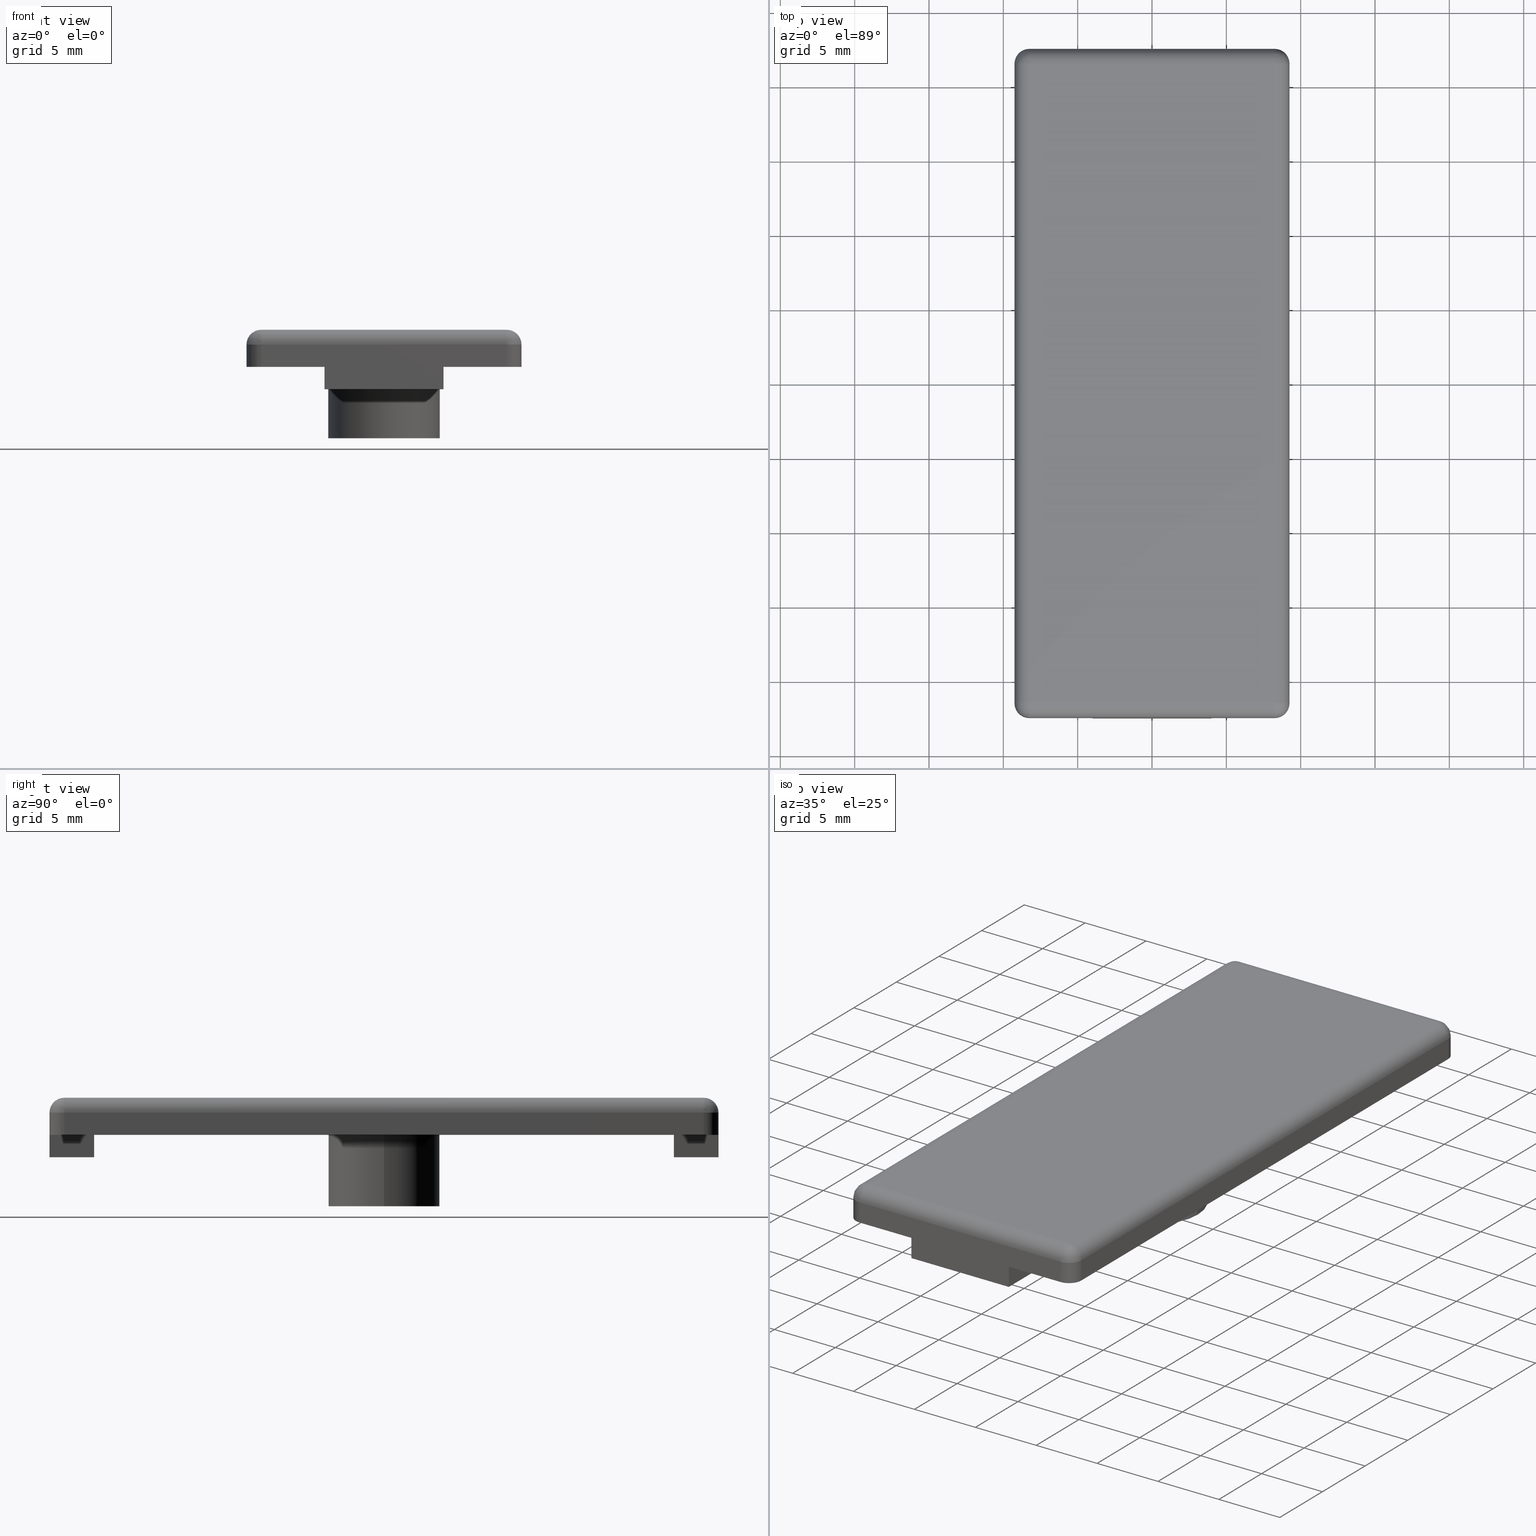
[diagram: canonical four-view strip — front | top / right | iso, engineering-drawing reading convention]
A machine part, canonical four-view strip (front | top / right | iso — engineering-drawing reading convention). The complete STEP part file that produces these views, byte-faithful:
ISO-10303-21;
HEADER;
/* Generated by software containing ST-Developer
 * from STEP Tools, Inc. (www.steptools.com) 
 */

FILE_DESCRIPTION(
/* description */ ('TAPPO 18,5X45 2 CAVE GRIGIO'),
/* implementation_level */ '2;1');

FILE_NAME(
/* name */ 
'Q:\\Catalogo\\2_Accessori Dierre\\Per Download Web e catalogo cartace
o\\CATALOGO TAPPI DI CHIUSURA\\PAGINA 90\\DTPTR0000010.stp',
/* time_stamp */ '2018-11-08T10:42:58+01:00',
/* author */ ('fzagni'),
/* organization */ (''),
/* preprocessor_version */ 'ST-DEVELOPER v16.1',
/* originating_system */ 'Autodesk Inventor 2016',
/* authorisation */ '');

FILE_SCHEMA (('AUTOMOTIVE_DESIGN { 1 0 10303 214 3 1 1 }'));
ENDSEC;

DATA;
#10=MECHANICAL_DESIGN_GEOMETRIC_PRESENTATION_REPRESENTATION('',(#13),#1111);
#11=SHAPE_REPRESENTATION_RELATIONSHIP('SRR','None',#1120,#12);
#12=ADVANCED_BREP_SHAPE_REPRESENTATION('',(#14),#1110);
#13=STYLED_ITEM('',(#1129),#14);
#14=MANIFOLD_SOLID_BREP('None',#483);
#15=B_SPLINE_SURFACE_WITH_KNOTS('',3,3,((#788,#789,#790,#791,#792,#793,
#794,#795,#796,#797,#798),(#799,#800,#801,#802,#803,#804,#805,#806,#807,
#808,#809),(#810,#811,#812,#813,#814,#815,#816,#817,#818,#819,#820),(#821,
#822,#823,#824,#825,#826,#827,#828,#829,#830,#831),(#832,#833,#834,#835,
#836,#837,#838,#839,#840,#841,#842),(#843,#844,#845,#846,#847,#848,#849,
#850,#851,#852,#853),(#854,#855,#856,#857,#858,#859,#860,#861,#862,#863,
#864)),.UNSPECIFIED.,.F.,.F.,.F.,(4,1,1,1,4),(4,1,1,1,1,1,1,1,4),(0.,0.390180644030891,
0.780361288062172,1.17054193209384,1.5607225761259),(0.,0.059149506251915,
0.11829901250383,0.236455528666215,0.471630649149419,0.70680576963262,0.824962285795007,
0.88411179204692,0.943261298298835),.UNSPECIFIED.);
#16=B_SPLINE_SURFACE_WITH_KNOTS('',3,3,((#869,#870,#871,#872,#873,#874,
#875,#876,#877,#878,#879),(#880,#881,#882,#883,#884,#885,#886,#887,#888,
#889,#890),(#891,#892,#893,#894,#895,#896,#897,#898,#899,#900,#901),(#902,
#903,#904,#905,#906,#907,#908,#909,#910,#911,#912),(#913,#914,#915,#916,
#917,#918,#919,#920,#921,#922,#923),(#924,#925,#926,#927,#928,#929,#930,
#931,#932,#933,#934),(#935,#936,#937,#938,#939,#940,#941,#942,#943,#944,
#945)),.UNSPECIFIED.,.F.,.F.,.F.,(4,1,1,1,4),(4,1,1,1,1,1,1,1,4),(0.,0.390180644030891,
0.780361288062172,1.17054193209384,1.5607225761259),(0.,0.059149506251915,
0.118299012503829,0.236455528666213,0.471630649149417,0.70680576963262,
0.824962285795004,0.884111792046918,0.943261298298834),.UNSPECIFIED.);
#17=B_SPLINE_SURFACE_WITH_KNOTS('',3,3,((#949,#950,#951,#952,#953,#954,
#955,#956,#957,#958,#959),(#960,#961,#962,#963,#964,#965,#966,#967,#968,
#969,#970),(#971,#972,#973,#974,#975,#976,#977,#978,#979,#980,#981),(#982,
#983,#984,#985,#986,#987,#988,#989,#990,#991,#992),(#993,#994,#995,#996,
#997,#998,#999,#1000,#1001,#1002,#1003),(#1004,#1005,#1006,#1007,#1008,
#1009,#1010,#1011,#1012,#1013,#1014),(#1015,#1016,#1017,#1018,#1019,#1020,
#1021,#1022,#1023,#1024,#1025)),.UNSPECIFIED.,.F.,.F.,.F.,(4,1,1,1,4),(4,
1,1,1,1,1,1,1,4),(0.,0.390180644030891,0.780361288062172,1.17054193209384,
1.5607225761259),(0.,0.059149506251914,0.118299012503829,0.236455528666214,
0.471630649149418,0.70680576963262,0.824962285795004,0.884111792046919,
0.943261298298835),.UNSPECIFIED.);
#18=B_SPLINE_SURFACE_WITH_KNOTS('',3,3,((#1029,#1030,#1031,#1032,#1033,
#1034,#1035,#1036,#1037,#1038,#1039),(#1040,#1041,#1042,#1043,#1044,#1045,
#1046,#1047,#1048,#1049,#1050),(#1051,#1052,#1053,#1054,#1055,#1056,#1057,
#1058,#1059,#1060,#1061),(#1062,#1063,#1064,#1065,#1066,#1067,#1068,#1069,
#1070,#1071,#1072),(#1073,#1074,#1075,#1076,#1077,#1078,#1079,#1080,#1081,
#1082,#1083),(#1084,#1085,#1086,#1087,#1088,#1089,#1090,#1091,#1092,#1093,
#1094),(#1095,#1096,#1097,#1098,#1099,#1100,#1101,#1102,#1103,#1104,#1105)),
 .UNSPECIFIED.,.F.,.F.,.F.,(4,1,1,1,4),(4,1,1,1,1,1,1,1,4),(0.,0.390180644030891,
0.780361288062172,1.17054193209384,1.5607225761259),(0.,0.059149506251915,
0.118299012503829,0.236455528666215,0.471630649149417,0.70680576963262,
0.824962285795005,0.88411179204692,0.943261298298835),.UNSPECIFIED.);
#19=CYLINDRICAL_SURFACE('',#497,3.749999999985);
#20=CYLINDRICAL_SURFACE('',#499,2.999999999988);
#21=CYLINDRICAL_SURFACE('',#508,0.999999999996);
#22=CYLINDRICAL_SURFACE('',#511,0.999999999996);
#23=CYLINDRICAL_SURFACE('',#514,0.999999999996);
#24=CYLINDRICAL_SURFACE('',#517,0.999999999996);
#25=CYLINDRICAL_SURFACE('',#521,1.);
#26=CYLINDRICAL_SURFACE('',#524,1.);
#27=CYLINDRICAL_SURFACE('',#527,1.);
#28=CYLINDRICAL_SURFACE('',#530,1.);
#29=FACE_BOUND('',#64,.T.);
#30=FACE_BOUND('',#71,.T.);
#31=FACE_BOUND('',#73,.T.);
#32=FACE_BOUND('',#75,.T.);
#33=FACE_OUTER_BOUND('',#63,.T.);
#34=FACE_OUTER_BOUND('',#65,.T.);
#35=FACE_OUTER_BOUND('',#66,.T.);
#36=FACE_OUTER_BOUND('',#67,.T.);
#37=FACE_OUTER_BOUND('',#68,.T.);
#38=FACE_OUTER_BOUND('',#69,.T.);
#39=FACE_OUTER_BOUND('',#70,.T.);
#40=FACE_OUTER_BOUND('',#72,.T.);
#41=FACE_OUTER_BOUND('',#74,.T.);
#42=FACE_OUTER_BOUND('',#76,.T.);
#43=FACE_OUTER_BOUND('',#77,.T.);
#44=FACE_OUTER_BOUND('',#78,.T.);
#45=FACE_OUTER_BOUND('',#79,.T.);
#46=FACE_OUTER_BOUND('',#80,.T.);
#47=FACE_OUTER_BOUND('',#81,.T.);
#48=FACE_OUTER_BOUND('',#82,.T.);
#49=FACE_OUTER_BOUND('',#83,.T.);
#50=FACE_OUTER_BOUND('',#84,.T.);
#51=FACE_OUTER_BOUND('',#85,.T.);
#52=FACE_OUTER_BOUND('',#86,.T.);
#53=FACE_OUTER_BOUND('',#87,.T.);
#54=FACE_OUTER_BOUND('',#88,.T.);
#55=FACE_OUTER_BOUND('',#89,.T.);
#56=FACE_OUTER_BOUND('',#90,.T.);
#57=FACE_OUTER_BOUND('',#91,.T.);
#58=FACE_OUTER_BOUND('',#92,.T.);
#59=FACE_OUTER_BOUND('',#93,.T.);
#60=FACE_OUTER_BOUND('',#94,.T.);
#61=FACE_OUTER_BOUND('',#95,.T.);
#62=FACE_OUTER_BOUND('',#96,.T.);
#63=EDGE_LOOP('',(#309,#310,#311,#312,#313,#314,#315,#316,#317,#318,#319,
#320,#321,#322,#323,#324));
#64=EDGE_LOOP('',(#325));
#65=EDGE_LOOP('',(#326));
#66=EDGE_LOOP('',(#327,#328,#329,#330));
#67=EDGE_LOOP('',(#331,#332,#333,#334));
#68=EDGE_LOOP('',(#335,#336,#337,#338));
#69=EDGE_LOOP('',(#339,#340,#341,#342));
#70=EDGE_LOOP('',(#343));
#71=EDGE_LOOP('',(#344));
#72=EDGE_LOOP('',(#345));
#73=EDGE_LOOP('',(#346));
#74=EDGE_LOOP('',(#347));
#75=EDGE_LOOP('',(#348));
#76=EDGE_LOOP('',(#349,#350,#351,#352));
#77=EDGE_LOOP('',(#353,#354,#355,#356));
#78=EDGE_LOOP('',(#357,#358,#359,#360));
#79=EDGE_LOOP('',(#361,#362,#363,#364));
#80=EDGE_LOOP('',(#365,#366,#367,#368));
#81=EDGE_LOOP('',(#369,#370,#371,#372));
#82=EDGE_LOOP('',(#373,#374,#375,#376));
#83=EDGE_LOOP('',(#377,#378,#379,#380,#381,#382,#383,#384));
#84=EDGE_LOOP('',(#385,#386,#387,#388));
#85=EDGE_LOOP('',(#389,#390,#391,#392));
#86=EDGE_LOOP('',(#393,#394,#395,#396));
#87=EDGE_LOOP('',(#397,#398,#399,#400,#401,#402,#403,#404));
#88=EDGE_LOOP('',(#405,#406,#407,#408));
#89=EDGE_LOOP('',(#409,#410,#411));
#90=EDGE_LOOP('',(#412,#413,#414,#415));
#91=EDGE_LOOP('',(#416,#417,#418));
#92=EDGE_LOOP('',(#419,#420,#421,#422));
#93=EDGE_LOOP('',(#423,#424,#425));
#94=EDGE_LOOP('',(#426,#427,#428,#429));
#95=EDGE_LOOP('',(#430,#431,#432));
#96=EDGE_LOOP('',(#433,#434,#435,#436));
#97=LINE('',#675,#141);
#98=LINE('',#677,#142);
#99=LINE('',#679,#143);
#100=LINE('',#681,#144);
#101=LINE('',#683,#145);
#102=LINE('',#687,#146);
#103=LINE('',#691,#147);
#104=LINE('',#693,#148);
#105=LINE('',#695,#149);
#106=LINE('',#697,#150);
#107=LINE('',#699,#151);
#108=LINE('',#702,#152);
#109=LINE('',#710,#153);
#110=LINE('',#712,#154);
#111=LINE('',#713,#155);
#112=LINE('',#716,#156);
#113=LINE('',#717,#157);
#114=LINE('',#720,#158);
#115=LINE('',#721,#159);
#116=LINE('',#723,#160);
#117=LINE('',#733,#161);
#118=LINE('',#735,#162);
#119=LINE('',#736,#163);
#120=LINE('',#739,#164);
#121=LINE('',#741,#165);
#122=LINE('',#742,#166);
#123=LINE('',#744,#167);
#124=LINE('',#746,#168);
#125=LINE('',#750,#169);
#126=LINE('',#752,#170);
#127=LINE('',#754,#171);
#128=LINE('',#755,#172);
#129=LINE('',#758,#173);
#130=LINE('',#760,#174);
#131=LINE('',#761,#175);
#132=LINE('',#765,#176);
#133=LINE('',#768,#177);
#134=LINE('',#769,#178);
#135=LINE('',#773,#179);
#136=LINE('',#776,#180);
#137=LINE('',#777,#181);
#138=LINE('',#781,#182);
#139=LINE('',#784,#183);
#140=LINE('',#785,#184);
#141=VECTOR('',#537,4.24999999998272);
#142=VECTOR('',#538,2.99999999998818);
#143=VECTOR('',#539,7.99999999996817);
#144=VECTOR('',#540,2.99999999998818);
#145=VECTOR('',#541,4.24999999998317);
#146=VECTOR('',#544,42.9999999998281);
#147=VECTOR('',#547,4.24999999998317);
#148=VECTOR('',#548,2.99999999998771);
#149=VECTOR('',#549,7.99999999996817);
#150=VECTOR('',#550,2.99999999998771);
#151=VECTOR('',#551,4.24999999998272);
#152=VECTOR('',#554,42.9999999998281);
#153=VECTOR('',#563,1.5);
#154=VECTOR('',#564,1.5);
#155=VECTOR('',#565,2.99999999998818);
#156=VECTOR('',#568,1.5);
#157=VECTOR('',#569,7.99999999996817);
#158=VECTOR('',#572,1.5);
#159=VECTOR('',#573,2.99999999998818);
#160=VECTOR('',#576,7.99999999996817);
#161=VECTOR('',#589,1.5);
#162=VECTOR('',#590,1.5);
#163=VECTOR('',#591,2.99999999998771);
#164=VECTOR('',#594,1.5);
#165=VECTOR('',#595,1.5);
#166=VECTOR('',#596,2.99999999998771);
#167=VECTOR('',#599,7.99999999996817);
#168=VECTOR('',#602,7.99999999996817);
#169=VECTOR('',#605,42.999999999824);
#170=VECTOR('',#606,16.4999999999304);
#171=VECTOR('',#607,42.999999999824);
#172=VECTOR('',#608,16.4999999999341);
#173=VECTOR('',#611,1.5);
#174=VECTOR('',#612,42.9999999998281);
#175=VECTOR('',#613,1.5);
#176=VECTOR('',#618,1.5);
#177=VECTOR('',#621,16.4999999999341);
#178=VECTOR('',#622,1.5);
#179=VECTOR('',#627,1.5);
#180=VECTOR('',#630,42.9999999998281);
#181=VECTOR('',#631,1.5);
#182=VECTOR('',#636,1.5);
#183=VECTOR('',#639,16.4999999999341);
#184=VECTOR('',#640,1.5);
#185=CIRCLE('',#486,0.999999999996);
#186=CIRCLE('',#487,0.999999999996);
#187=CIRCLE('',#488,0.999999999996);
#188=CIRCLE('',#489,0.999999999996);
#189=CIRCLE('',#490,3.749999999985);
#190=CIRCLE('',#492,2.999999999988);
#191=CIRCLE('',#498,3.749999999985);
#192=CIRCLE('',#500,2.999999999988);
#193=CIRCLE('',#509,0.999999999996);
#194=CIRCLE('',#512,0.999999999996);
#195=CIRCLE('',#515,0.999999999996);
#196=CIRCLE('',#518,0.999999999996);
#197=CIRCLE('',#519,0.999999999996);
#198=CIRCLE('',#520,1.);
#199=CIRCLE('',#522,1.);
#200=CIRCLE('',#523,0.999999999996);
#201=CIRCLE('',#525,1.);
#202=CIRCLE('',#526,0.999999999996);
#203=CIRCLE('',#528,1.);
#204=CIRCLE('',#529,0.999999999996);
#205=VERTEX_POINT('',#671);
#206=VERTEX_POINT('',#672);
#207=VERTEX_POINT('',#674);
#208=VERTEX_POINT('',#676);
#209=VERTEX_POINT('',#678);
#210=VERTEX_POINT('',#680);
#211=VERTEX_POINT('',#682);
#212=VERTEX_POINT('',#684);
#213=VERTEX_POINT('',#686);
#214=VERTEX_POINT('',#688);
#215=VERTEX_POINT('',#690);
#216=VERTEX_POINT('',#692);
#217=VERTEX_POINT('',#694);
#218=VERTEX_POINT('',#696);
#219=VERTEX_POINT('',#698);
#220=VERTEX_POINT('',#700);
#221=VERTEX_POINT('',#703);
#222=VERTEX_POINT('',#706);
#223=VERTEX_POINT('',#709);
#224=VERTEX_POINT('',#711);
#225=VERTEX_POINT('',#715);
#226=VERTEX_POINT('',#719);
#227=VERTEX_POINT('',#725);
#228=VERTEX_POINT('',#728);
#229=VERTEX_POINT('',#732);
#230=VERTEX_POINT('',#734);
#231=VERTEX_POINT('',#738);
#232=VERTEX_POINT('',#740);
#233=VERTEX_POINT('',#748);
#234=VERTEX_POINT('',#749);
#235=VERTEX_POINT('',#751);
#236=VERTEX_POINT('',#753);
#237=VERTEX_POINT('',#757);
#238=VERTEX_POINT('',#759);
#239=VERTEX_POINT('',#763);
#240=VERTEX_POINT('',#767);
#241=VERTEX_POINT('',#771);
#242=VERTEX_POINT('',#775);
#243=VERTEX_POINT('',#779);
#244=VERTEX_POINT('',#783);
#245=EDGE_CURVE('',#205,#206,#185,.T.);
#246=EDGE_CURVE('',#206,#207,#97,.T.);
#247=EDGE_CURVE('',#208,#207,#98,.T.);
#248=EDGE_CURVE('',#209,#208,#99,.T.);
#249=EDGE_CURVE('',#210,#209,#100,.T.);
#250=EDGE_CURVE('',#210,#211,#101,.T.);
#251=EDGE_CURVE('',#211,#212,#186,.T.);
#252=EDGE_CURVE('',#212,#213,#102,.T.);
#253=EDGE_CURVE('',#213,#214,#187,.T.);
#254=EDGE_CURVE('',#214,#215,#103,.T.);
#255=EDGE_CURVE('',#216,#215,#104,.T.);
#256=EDGE_CURVE('',#217,#216,#105,.T.);
#257=EDGE_CURVE('',#218,#217,#106,.T.);
#258=EDGE_CURVE('',#218,#219,#107,.T.);
#259=EDGE_CURVE('',#219,#220,#188,.T.);
#260=EDGE_CURVE('',#220,#205,#108,.T.);
#261=EDGE_CURVE('',#221,#221,#189,.T.);
#262=EDGE_CURVE('',#222,#222,#190,.T.);
#263=EDGE_CURVE('',#210,#223,#109,.T.);
#264=EDGE_CURVE('',#209,#224,#110,.T.);
#265=EDGE_CURVE('',#223,#224,#111,.T.);
#266=EDGE_CURVE('',#208,#225,#112,.T.);
#267=EDGE_CURVE('',#224,#225,#113,.T.);
#268=EDGE_CURVE('',#207,#226,#114,.T.);
#269=EDGE_CURVE('',#225,#226,#115,.T.);
#270=EDGE_CURVE('',#226,#223,#116,.T.);
#271=EDGE_CURVE('',#227,#227,#191,.T.);
#272=EDGE_CURVE('',#228,#228,#192,.T.);
#273=EDGE_CURVE('',#216,#229,#117,.T.);
#274=EDGE_CURVE('',#215,#230,#118,.T.);
#275=EDGE_CURVE('',#229,#230,#119,.T.);
#276=EDGE_CURVE('',#218,#231,#120,.T.);
#277=EDGE_CURVE('',#217,#232,#121,.T.);
#278=EDGE_CURVE('',#231,#232,#122,.T.);
#279=EDGE_CURVE('',#232,#229,#123,.T.);
#280=EDGE_CURVE('',#230,#231,#124,.T.);
#281=EDGE_CURVE('',#233,#234,#125,.T.);
#282=EDGE_CURVE('',#235,#233,#126,.T.);
#283=EDGE_CURVE('',#236,#235,#127,.T.);
#284=EDGE_CURVE('',#234,#236,#128,.T.);
#285=EDGE_CURVE('',#212,#237,#129,.T.);
#286=EDGE_CURVE('',#237,#238,#130,.T.);
#287=EDGE_CURVE('',#213,#238,#131,.T.);
#288=EDGE_CURVE('',#238,#239,#193,.T.);
#289=EDGE_CURVE('',#214,#239,#132,.T.);
#290=EDGE_CURVE('',#239,#240,#133,.T.);
#291=EDGE_CURVE('',#219,#240,#134,.T.);
#292=EDGE_CURVE('',#240,#241,#194,.T.);
#293=EDGE_CURVE('',#220,#241,#135,.T.);
#294=EDGE_CURVE('',#241,#242,#136,.T.);
#295=EDGE_CURVE('',#205,#242,#137,.T.);
#296=EDGE_CURVE('',#242,#243,#195,.T.);
#297=EDGE_CURVE('',#206,#243,#138,.T.);
#298=EDGE_CURVE('',#243,#244,#139,.T.);
#299=EDGE_CURVE('',#211,#244,#140,.T.);
#300=EDGE_CURVE('',#244,#237,#196,.T.);
#301=EDGE_CURVE('',#244,#236,#197,.T.);
#302=EDGE_CURVE('',#237,#236,#198,.T.);
#303=EDGE_CURVE('',#234,#243,#199,.T.);
#304=EDGE_CURVE('',#242,#234,#200,.T.);
#305=EDGE_CURVE('',#241,#233,#201,.T.);
#306=EDGE_CURVE('',#240,#233,#202,.T.);
#307=EDGE_CURVE('',#235,#239,#203,.T.);
#308=EDGE_CURVE('',#238,#235,#204,.T.);
#309=ORIENTED_EDGE('',*,*,#245,.T.);
#310=ORIENTED_EDGE('',*,*,#246,.T.);
#311=ORIENTED_EDGE('',*,*,#247,.F.);
#312=ORIENTED_EDGE('',*,*,#248,.F.);
#313=ORIENTED_EDGE('',*,*,#249,.F.);
#314=ORIENTED_EDGE('',*,*,#250,.T.);
#315=ORIENTED_EDGE('',*,*,#251,.T.);
#316=ORIENTED_EDGE('',*,*,#252,.T.);
#317=ORIENTED_EDGE('',*,*,#253,.T.);
#318=ORIENTED_EDGE('',*,*,#254,.T.);
#319=ORIENTED_EDGE('',*,*,#255,.F.);
#320=ORIENTED_EDGE('',*,*,#256,.F.);
#321=ORIENTED_EDGE('',*,*,#257,.F.);
#322=ORIENTED_EDGE('',*,*,#258,.T.);
#323=ORIENTED_EDGE('',*,*,#259,.T.);
#324=ORIENTED_EDGE('',*,*,#260,.T.);
#325=ORIENTED_EDGE('',*,*,#261,.F.);
#326=ORIENTED_EDGE('',*,*,#262,.F.);
#327=ORIENTED_EDGE('',*,*,#263,.F.);
#328=ORIENTED_EDGE('',*,*,#249,.T.);
#329=ORIENTED_EDGE('',*,*,#264,.T.);
#330=ORIENTED_EDGE('',*,*,#265,.F.);
#331=ORIENTED_EDGE('',*,*,#264,.F.);
#332=ORIENTED_EDGE('',*,*,#248,.T.);
#333=ORIENTED_EDGE('',*,*,#266,.T.);
#334=ORIENTED_EDGE('',*,*,#267,.F.);
#335=ORIENTED_EDGE('',*,*,#266,.F.);
#336=ORIENTED_EDGE('',*,*,#247,.T.);
#337=ORIENTED_EDGE('',*,*,#268,.T.);
#338=ORIENTED_EDGE('',*,*,#269,.F.);
#339=ORIENTED_EDGE('',*,*,#265,.T.);
#340=ORIENTED_EDGE('',*,*,#267,.T.);
#341=ORIENTED_EDGE('',*,*,#269,.T.);
#342=ORIENTED_EDGE('',*,*,#270,.T.);
#343=ORIENTED_EDGE('',*,*,#261,.T.);
#344=ORIENTED_EDGE('',*,*,#271,.F.);
#345=ORIENTED_EDGE('',*,*,#262,.T.);
#346=ORIENTED_EDGE('',*,*,#272,.F.);
#347=ORIENTED_EDGE('',*,*,#271,.T.);
#348=ORIENTED_EDGE('',*,*,#272,.T.);
#349=ORIENTED_EDGE('',*,*,#273,.F.);
#350=ORIENTED_EDGE('',*,*,#255,.T.);
#351=ORIENTED_EDGE('',*,*,#274,.T.);
#352=ORIENTED_EDGE('',*,*,#275,.F.);
#353=ORIENTED_EDGE('',*,*,#276,.F.);
#354=ORIENTED_EDGE('',*,*,#257,.T.);
#355=ORIENTED_EDGE('',*,*,#277,.T.);
#356=ORIENTED_EDGE('',*,*,#278,.F.);
#357=ORIENTED_EDGE('',*,*,#279,.F.);
#358=ORIENTED_EDGE('',*,*,#277,.F.);
#359=ORIENTED_EDGE('',*,*,#256,.T.);
#360=ORIENTED_EDGE('',*,*,#273,.T.);
#361=ORIENTED_EDGE('',*,*,#275,.T.);
#362=ORIENTED_EDGE('',*,*,#280,.T.);
#363=ORIENTED_EDGE('',*,*,#278,.T.);
#364=ORIENTED_EDGE('',*,*,#279,.T.);
#365=ORIENTED_EDGE('',*,*,#281,.F.);
#366=ORIENTED_EDGE('',*,*,#282,.F.);
#367=ORIENTED_EDGE('',*,*,#283,.F.);
#368=ORIENTED_EDGE('',*,*,#284,.F.);
#369=ORIENTED_EDGE('',*,*,#285,.T.);
#370=ORIENTED_EDGE('',*,*,#286,.T.);
#371=ORIENTED_EDGE('',*,*,#287,.F.);
#372=ORIENTED_EDGE('',*,*,#252,.F.);
#373=ORIENTED_EDGE('',*,*,#287,.T.);
#374=ORIENTED_EDGE('',*,*,#288,.T.);
#375=ORIENTED_EDGE('',*,*,#289,.F.);
#376=ORIENTED_EDGE('',*,*,#253,.F.);
#377=ORIENTED_EDGE('',*,*,#289,.T.);
#378=ORIENTED_EDGE('',*,*,#290,.T.);
#379=ORIENTED_EDGE('',*,*,#291,.F.);
#380=ORIENTED_EDGE('',*,*,#258,.F.);
#381=ORIENTED_EDGE('',*,*,#276,.T.);
#382=ORIENTED_EDGE('',*,*,#280,.F.);
#383=ORIENTED_EDGE('',*,*,#274,.F.);
#384=ORIENTED_EDGE('',*,*,#254,.F.);
#385=ORIENTED_EDGE('',*,*,#291,.T.);
#386=ORIENTED_EDGE('',*,*,#292,.T.);
#387=ORIENTED_EDGE('',*,*,#293,.F.);
#388=ORIENTED_EDGE('',*,*,#259,.F.);
#389=ORIENTED_EDGE('',*,*,#260,.F.);
#390=ORIENTED_EDGE('',*,*,#293,.T.);
#391=ORIENTED_EDGE('',*,*,#294,.T.);
#392=ORIENTED_EDGE('',*,*,#295,.F.);
#393=ORIENTED_EDGE('',*,*,#295,.T.);
#394=ORIENTED_EDGE('',*,*,#296,.T.);
#395=ORIENTED_EDGE('',*,*,#297,.F.);
#396=ORIENTED_EDGE('',*,*,#245,.F.);
#397=ORIENTED_EDGE('',*,*,#297,.T.);
#398=ORIENTED_EDGE('',*,*,#298,.T.);
#399=ORIENTED_EDGE('',*,*,#299,.F.);
#400=ORIENTED_EDGE('',*,*,#250,.F.);
#401=ORIENTED_EDGE('',*,*,#263,.T.);
#402=ORIENTED_EDGE('',*,*,#270,.F.);
#403=ORIENTED_EDGE('',*,*,#268,.F.);
#404=ORIENTED_EDGE('',*,*,#246,.F.);
#405=ORIENTED_EDGE('',*,*,#299,.T.);
#406=ORIENTED_EDGE('',*,*,#300,.T.);
#407=ORIENTED_EDGE('',*,*,#285,.F.);
#408=ORIENTED_EDGE('',*,*,#251,.F.);
#409=ORIENTED_EDGE('',*,*,#301,.T.);
#410=ORIENTED_EDGE('',*,*,#302,.F.);
#411=ORIENTED_EDGE('',*,*,#300,.F.);
#412=ORIENTED_EDGE('',*,*,#284,.T.);
#413=ORIENTED_EDGE('',*,*,#301,.F.);
#414=ORIENTED_EDGE('',*,*,#298,.F.);
#415=ORIENTED_EDGE('',*,*,#303,.F.);
#416=ORIENTED_EDGE('',*,*,#296,.F.);
#417=ORIENTED_EDGE('',*,*,#304,.T.);
#418=ORIENTED_EDGE('',*,*,#303,.T.);
#419=ORIENTED_EDGE('',*,*,#294,.F.);
#420=ORIENTED_EDGE('',*,*,#305,.T.);
#421=ORIENTED_EDGE('',*,*,#281,.T.);
#422=ORIENTED_EDGE('',*,*,#304,.F.);
#423=ORIENTED_EDGE('',*,*,#292,.F.);
#424=ORIENTED_EDGE('',*,*,#306,.T.);
#425=ORIENTED_EDGE('',*,*,#305,.F.);
#426=ORIENTED_EDGE('',*,*,#306,.F.);
#427=ORIENTED_EDGE('',*,*,#290,.F.);
#428=ORIENTED_EDGE('',*,*,#307,.F.);
#429=ORIENTED_EDGE('',*,*,#282,.T.);
#430=ORIENTED_EDGE('',*,*,#288,.F.);
#431=ORIENTED_EDGE('',*,*,#308,.T.);
#432=ORIENTED_EDGE('',*,*,#307,.T.);
#433=ORIENTED_EDGE('',*,*,#302,.T.);
#434=ORIENTED_EDGE('',*,*,#283,.T.);
#435=ORIENTED_EDGE('',*,*,#308,.F.);
#436=ORIENTED_EDGE('',*,*,#286,.F.);
#437=PLANE('',#485);
#438=PLANE('',#491);
#439=PLANE('',#493);
#440=PLANE('',#494);
#441=PLANE('',#495);
#442=PLANE('',#496);
#443=PLANE('',#501);
#444=PLANE('',#502);
#445=PLANE('',#503);
#446=PLANE('',#504);
#447=PLANE('',#505);
#448=PLANE('',#506);
#449=PLANE('',#507);
#450=PLANE('',#510);
#451=PLANE('',#513);
#452=PLANE('',#516);
#453=ADVANCED_FACE('',(#33,#29),#437,.T.);
#454=ADVANCED_FACE('',(#34),#438,.T.);
#455=ADVANCED_FACE('',(#35),#439,.T.);
#456=ADVANCED_FACE('',(#36),#440,.T.);
#457=ADVANCED_FACE('',(#37),#441,.T.);
#458=ADVANCED_FACE('',(#38),#442,.T.);
#459=ADVANCED_FACE('',(#39,#30),#19,.T.);
#460=ADVANCED_FACE('',(#40,#31),#20,.F.);
#461=ADVANCED_FACE('',(#41,#32),#443,.T.);
#462=ADVANCED_FACE('',(#42),#444,.T.);
#463=ADVANCED_FACE('',(#43),#445,.T.);
#464=ADVANCED_FACE('',(#44),#446,.T.);
#465=ADVANCED_FACE('',(#45),#447,.T.);
#466=ADVANCED_FACE('',(#46),#448,.F.);
#467=ADVANCED_FACE('',(#47),#449,.F.);
#468=ADVANCED_FACE('',(#48),#21,.T.);
#469=ADVANCED_FACE('',(#49),#450,.F.);
#470=ADVANCED_FACE('',(#50),#22,.T.);
#471=ADVANCED_FACE('',(#51),#451,.F.);
#472=ADVANCED_FACE('',(#52),#23,.T.);
#473=ADVANCED_FACE('',(#53),#452,.F.);
#474=ADVANCED_FACE('',(#54),#24,.T.);
#475=ADVANCED_FACE('',(#55),#15,.T.);
#476=ADVANCED_FACE('',(#56),#25,.T.);
#477=ADVANCED_FACE('',(#57),#16,.T.);
#478=ADVANCED_FACE('',(#58),#26,.T.);
#479=ADVANCED_FACE('',(#59),#17,.T.);
#480=ADVANCED_FACE('',(#60),#27,.T.);
#481=ADVANCED_FACE('',(#61),#18,.T.);
#482=ADVANCED_FACE('',(#62),#28,.T.);
#483=CLOSED_SHELL('',(#453,#454,#455,#456,#457,#458,#459,#460,#461,#462,
#463,#464,#465,#466,#467,#468,#469,#470,#471,#472,#473,#474,#475,#476,#477,
#478,#479,#480,#481,#482));
#484=AXIS2_PLACEMENT_3D('placement',#669,#531,#532);
#485=AXIS2_PLACEMENT_3D('',#670,#533,#534);
#486=AXIS2_PLACEMENT_3D('',#673,#535,#536);
#487=AXIS2_PLACEMENT_3D('',#685,#542,#543);
#488=AXIS2_PLACEMENT_3D('',#689,#545,#546);
#489=AXIS2_PLACEMENT_3D('',#701,#552,#553);
#490=AXIS2_PLACEMENT_3D('',#704,#555,#556);
#491=AXIS2_PLACEMENT_3D('',#705,#557,#558);
#492=AXIS2_PLACEMENT_3D('',#707,#559,#560);
#493=AXIS2_PLACEMENT_3D('',#708,#561,#562);
#494=AXIS2_PLACEMENT_3D('',#714,#566,#567);
#495=AXIS2_PLACEMENT_3D('',#718,#570,#571);
#496=AXIS2_PLACEMENT_3D('',#722,#574,#575);
#497=AXIS2_PLACEMENT_3D('',#724,#577,#578);
#498=AXIS2_PLACEMENT_3D('',#726,#579,#580);
#499=AXIS2_PLACEMENT_3D('',#727,#581,#582);
#500=AXIS2_PLACEMENT_3D('',#729,#583,#584);
#501=AXIS2_PLACEMENT_3D('',#730,#585,#586);
#502=AXIS2_PLACEMENT_3D('',#731,#587,#588);
#503=AXIS2_PLACEMENT_3D('',#737,#592,#593);
#504=AXIS2_PLACEMENT_3D('',#743,#597,#598);
#505=AXIS2_PLACEMENT_3D('',#745,#600,#601);
#506=AXIS2_PLACEMENT_3D('',#747,#603,#604);
#507=AXIS2_PLACEMENT_3D('',#756,#609,#610);
#508=AXIS2_PLACEMENT_3D('',#762,#614,#615);
#509=AXIS2_PLACEMENT_3D('',#764,#616,#617);
#510=AXIS2_PLACEMENT_3D('',#766,#619,#620);
#511=AXIS2_PLACEMENT_3D('',#770,#623,#624);
#512=AXIS2_PLACEMENT_3D('',#772,#625,#626);
#513=AXIS2_PLACEMENT_3D('',#774,#628,#629);
#514=AXIS2_PLACEMENT_3D('',#778,#632,#633);
#515=AXIS2_PLACEMENT_3D('',#780,#634,#635);
#516=AXIS2_PLACEMENT_3D('',#782,#637,#638);
#517=AXIS2_PLACEMENT_3D('',#786,#641,#642);
#518=AXIS2_PLACEMENT_3D('',#787,#643,#644);
#519=AXIS2_PLACEMENT_3D('',#865,#645,#646);
#520=AXIS2_PLACEMENT_3D('',#866,#647,#648);
#521=AXIS2_PLACEMENT_3D('',#867,#649,#650);
#522=AXIS2_PLACEMENT_3D('',#868,#651,#652);
#523=AXIS2_PLACEMENT_3D('',#946,#653,#654);
#524=AXIS2_PLACEMENT_3D('',#947,#655,#656);
#525=AXIS2_PLACEMENT_3D('',#948,#657,#658);
#526=AXIS2_PLACEMENT_3D('',#1026,#659,#660);
#527=AXIS2_PLACEMENT_3D('',#1027,#661,#662);
#528=AXIS2_PLACEMENT_3D('',#1028,#663,#664);
#529=AXIS2_PLACEMENT_3D('',#1106,#665,#666);
#530=AXIS2_PLACEMENT_3D('',#1107,#667,#668);
#531=DIRECTION('axis',(0.,0.,1.));
#532=DIRECTION('refdir',(1.,0.,0.));
#533=DIRECTION('center_axis',(0.,0.,-1.));
#534=DIRECTION('ref_axis',(-1.,0.,0.));
#535=DIRECTION('center_axis',(0.,0.,-1.));
#536=DIRECTION('ref_axis',(-1.,0.,0.));
#537=DIRECTION('',(-1.,0.,0.));
#538=DIRECTION('',(0.,-1.,0.));
#539=DIRECTION('',(1.,0.,0.));
#540=DIRECTION('',(0.,1.,0.));
#541=DIRECTION('',(-1.,0.,0.));
#542=DIRECTION('center_axis',(0.,0.,-1.));
#543=DIRECTION('ref_axis',(-1.,0.,0.));
#544=DIRECTION('',(0.,1.,0.));
#545=DIRECTION('center_axis',(0.,0.,-1.));
#546=DIRECTION('ref_axis',(-1.,0.,0.));
#547=DIRECTION('',(1.,0.,0.));
#548=DIRECTION('',(0.,1.,0.));
#549=DIRECTION('',(-1.,0.,0.));
#550=DIRECTION('',(0.,-1.,0.));
#551=DIRECTION('',(1.,0.,0.));
#552=DIRECTION('center_axis',(0.,0.,-1.));
#553=DIRECTION('ref_axis',(-1.,0.,0.));
#554=DIRECTION('',(0.,-1.,0.));
#555=DIRECTION('center_axis',(0.,0.,-1.));
#556=DIRECTION('ref_axis',(-1.,0.,0.));
#557=DIRECTION('center_axis',(0.,0.,-1.));
#558=DIRECTION('ref_axis',(-1.,0.,0.));
#559=DIRECTION('center_axis',(0.,0.,1.));
#560=DIRECTION('ref_axis',(-1.,0.,0.));
#561=DIRECTION('center_axis',(-1.,0.,0.));
#562=DIRECTION('ref_axis',(0.,0.,1.));
#563=DIRECTION('',(0.,0.,-1.));
#564=DIRECTION('',(0.,0.,-1.));
#565=DIRECTION('',(0.,1.,0.));
#566=DIRECTION('center_axis',(0.,1.,0.));
#567=DIRECTION('ref_axis',(0.,0.,1.));
#568=DIRECTION('',(0.,0.,-1.));
#569=DIRECTION('',(1.,0.,0.));
#570=DIRECTION('center_axis',(1.,0.,0.));
#571=DIRECTION('ref_axis',(0.,0.,-1.));
#572=DIRECTION('',(0.,0.,-1.));
#573=DIRECTION('',(0.,-1.,0.));
#574=DIRECTION('center_axis',(0.,0.,-1.));
#575=DIRECTION('ref_axis',(-1.,0.,0.));
#576=DIRECTION('',(-1.,0.,0.));
#577=DIRECTION('center_axis',(0.,0.,-1.));
#578=DIRECTION('ref_axis',(-1.,0.,0.));
#579=DIRECTION('center_axis',(0.,0.,-1.));
#580=DIRECTION('ref_axis',(-1.,0.,0.));
#581=DIRECTION('center_axis',(0.,0.,1.));
#582=DIRECTION('ref_axis',(-1.,0.,0.));
#583=DIRECTION('center_axis',(0.,0.,1.));
#584=DIRECTION('ref_axis',(-1.,0.,0.));
#585=DIRECTION('center_axis',(0.,0.,-1.));
#586=DIRECTION('ref_axis',(-1.,0.,0.));
#587=DIRECTION('center_axis',(-1.,0.,0.));
#588=DIRECTION('ref_axis',(0.,0.,1.));
#589=DIRECTION('',(0.,0.,-1.));
#590=DIRECTION('',(0.,0.,-1.));
#591=DIRECTION('',(0.,1.,0.));
#592=DIRECTION('center_axis',(1.,0.,0.));
#593=DIRECTION('ref_axis',(0.,0.,-1.));
#594=DIRECTION('',(0.,0.,-1.));
#595=DIRECTION('',(0.,0.,-1.));
#596=DIRECTION('',(0.,-1.,0.));
#597=DIRECTION('center_axis',(0.,-1.,0.));
#598=DIRECTION('ref_axis',(0.,0.,-1.));
#599=DIRECTION('',(-1.,0.,0.));
#600=DIRECTION('center_axis',(0.,0.,-1.));
#601=DIRECTION('ref_axis',(-1.,0.,0.));
#602=DIRECTION('',(1.,0.,0.));
#603=DIRECTION('center_axis',(0.,0.,-1.));
#604=DIRECTION('ref_axis',(-1.,0.,0.));
#605=DIRECTION('',(0.,-1.,0.));
#606=DIRECTION('',(1.,0.,0.));
#607=DIRECTION('',(0.,1.,0.));
#608=DIRECTION('',(-1.,0.,0.));
#609=DIRECTION('center_axis',(1.,0.,0.));
#610=DIRECTION('ref_axis',(0.,0.,-1.));
#611=DIRECTION('',(0.,0.,1.));
#612=DIRECTION('',(0.,1.,0.));
#613=DIRECTION('',(0.,0.,1.));
#614=DIRECTION('center_axis',(0.,0.,-1.));
#615=DIRECTION('ref_axis',(-1.,0.,0.));
#616=DIRECTION('center_axis',(0.,0.,-1.));
#617=DIRECTION('ref_axis',(-1.,0.,0.));
#618=DIRECTION('',(0.,0.,1.));
#619=DIRECTION('center_axis',(0.,-1.,0.));
#620=DIRECTION('ref_axis',(0.,0.,-1.));
#621=DIRECTION('',(1.,0.,0.));
#622=DIRECTION('',(0.,0.,1.));
#623=DIRECTION('center_axis',(0.,0.,-1.));
#624=DIRECTION('ref_axis',(-1.,0.,0.));
#625=DIRECTION('center_axis',(0.,0.,-1.));
#626=DIRECTION('ref_axis',(-1.,0.,0.));
#627=DIRECTION('',(0.,0.,1.));
#628=DIRECTION('center_axis',(-1.,0.,0.));
#629=DIRECTION('ref_axis',(0.,0.,1.));
#630=DIRECTION('',(0.,-1.,0.));
#631=DIRECTION('',(0.,0.,1.));
#632=DIRECTION('center_axis',(0.,0.,-1.));
#633=DIRECTION('ref_axis',(-1.,0.,0.));
#634=DIRECTION('center_axis',(0.,0.,-1.));
#635=DIRECTION('ref_axis',(-1.,0.,0.));
#636=DIRECTION('',(0.,0.,1.));
#637=DIRECTION('center_axis',(0.,1.,0.));
#638=DIRECTION('ref_axis',(0.,0.,1.));
#639=DIRECTION('',(-1.,0.,0.));
#640=DIRECTION('',(0.,0.,1.));
#641=DIRECTION('center_axis',(0.,0.,-1.));
#642=DIRECTION('ref_axis',(0.,-1.,0.));
#643=DIRECTION('center_axis',(0.,0.,-1.));
#644=DIRECTION('ref_axis',(-1.,0.,0.));
#645=DIRECTION('center_axis',(-1.,0.,0.));
#646=DIRECTION('ref_axis',(0.,-1.,0.));
#647=DIRECTION('center_axis',(0.,1.,0.));
#648=DIRECTION('ref_axis',(-1.,0.,0.));
#649=DIRECTION('center_axis',(1.,0.,0.));
#650=DIRECTION('ref_axis',(0.,0.,1.));
#651=DIRECTION('center_axis',(1.,0.,0.));
#652=DIRECTION('ref_axis',(0.,0.,1.));
#653=DIRECTION('center_axis',(0.,-1.,0.));
#654=DIRECTION('ref_axis',(1.,0.,0.));
#655=DIRECTION('center_axis',(0.,-1.,0.));
#656=DIRECTION('ref_axis',(1.,0.,0.));
#657=DIRECTION('center_axis',(0.,-1.,0.));
#658=DIRECTION('ref_axis',(1.,0.,0.));
#659=DIRECTION('center_axis',(1.,0.,0.));
#660=DIRECTION('ref_axis',(0.,1.,0.));
#661=DIRECTION('center_axis',(-1.,0.,0.));
#662=DIRECTION('ref_axis',(0.,0.,1.));
#663=DIRECTION('center_axis',(-1.,0.,0.));
#664=DIRECTION('ref_axis',(0.,0.,1.));
#665=DIRECTION('center_axis',(0.,1.,0.));
#666=DIRECTION('ref_axis',(-1.,0.,0.));
#667=DIRECTION('center_axis',(0.,1.,0.));
#668=DIRECTION('ref_axis',(-1.,0.,0.));
#669=CARTESIAN_POINT('',(0.,0.,0.));
#670=CARTESIAN_POINT('Origin',(11.1000047315933,-27.0000047315743,1.359359E-15));
#671=CARTESIAN_POINT('',(9.24999999996271,-21.4999999999141,1.132798E-15));
#672=CARTESIAN_POINT('',(8.2499999999668,-22.49999999991,1.010334E-15));
#673=CARTESIAN_POINT('Origin',(8.2499999999668,-21.4999999999141,1.010334E-15));
#674=CARTESIAN_POINT('',(3.99999999998409,-22.49999999991,4.898587E-16));
#675=CARTESIAN_POINT('',(8.2499999999668,-22.49999999991,1.010334E-15));
#676=CARTESIAN_POINT('',(3.99999999998409,-19.4999999999218,4.898587E-16));
#677=CARTESIAN_POINT('',(3.99999999998409,-19.4999999999218,4.898587E-16));
#678=CARTESIAN_POINT('',(-3.99999999998409,-19.4999999999218,-4.898587E-16));
#679=CARTESIAN_POINT('',(-3.99999999998409,-19.4999999999218,-4.898587E-16));
#680=CARTESIAN_POINT('',(-3.99999999998409,-22.49999999991,-4.898587E-16));
#681=CARTESIAN_POINT('',(-3.99999999998409,-22.49999999991,-4.898587E-16));
#682=CARTESIAN_POINT('',(-8.24999999996726,-22.49999999991,-1.010334E-15));
#683=CARTESIAN_POINT('',(-3.99999999998409,-22.49999999991,-4.898587E-16));
#684=CARTESIAN_POINT('',(-9.24999999996317,-21.4999999999141,-1.132798E-15));
#685=CARTESIAN_POINT('Origin',(-8.24999999996726,-21.4999999999141,-1.010334E-15));
#686=CARTESIAN_POINT('',(-9.24999999996317,21.4999999999141,-1.132798E-15));
#687=CARTESIAN_POINT('',(-9.24999999996317,-21.4999999999141,-1.132798E-15));
#688=CARTESIAN_POINT('',(-8.24999999996726,22.49999999991,-1.010334E-15));
#689=CARTESIAN_POINT('Origin',(-8.24999999996726,21.4999999999141,-1.010334E-15));
#690=CARTESIAN_POINT('',(-3.99999999998409,22.49999999991,-4.898587E-16));
#691=CARTESIAN_POINT('',(-8.24999999996726,22.49999999991,-1.010334E-15));
#692=CARTESIAN_POINT('',(-3.99999999998409,19.4999999999222,-4.898587E-16));
#693=CARTESIAN_POINT('',(-3.99999999998409,19.4999999999222,-4.898587E-16));
#694=CARTESIAN_POINT('',(3.99999999998409,19.4999999999222,4.898587E-16));
#695=CARTESIAN_POINT('',(3.99999999998409,19.4999999999222,4.898587E-16));
#696=CARTESIAN_POINT('',(3.99999999998409,22.49999999991,4.898587E-16));
#697=CARTESIAN_POINT('',(3.99999999998409,22.49999999991,4.898587E-16));
#698=CARTESIAN_POINT('',(8.2499999999668,22.49999999991,1.010334E-15));
#699=CARTESIAN_POINT('',(3.99999999998409,22.49999999991,4.898587E-16));
#700=CARTESIAN_POINT('',(9.24999999996317,21.4999999999141,1.132798E-15));
#701=CARTESIAN_POINT('Origin',(8.2499999999668,21.4999999999141,1.010334E-15));
#702=CARTESIAN_POINT('',(9.24999999996317,21.4999999999141,1.132798E-15));
#703=CARTESIAN_POINT('',(3.749999999985,0.,4.592425E-16));
#704=CARTESIAN_POINT('Origin',(0.,0.,0.));
#705=CARTESIAN_POINT('Origin',(11.1000047315933,-27.0000047315743,1.359359E-15));
#706=CARTESIAN_POINT('',(2.999999999988,0.,3.67394E-16));
#707=CARTESIAN_POINT('Origin',(0.,0.,0.));
#708=CARTESIAN_POINT('Origin',(-3.99999999998409,-22.49999999991,-4.898587E-16));
#709=CARTESIAN_POINT('',(-3.99999999998409,-22.49999999991,-1.5));
#710=CARTESIAN_POINT('',(-3.99999999998409,-22.49999999991,-4.898587E-16));
#711=CARTESIAN_POINT('',(-3.99999999998409,-19.4999999999218,-1.5));
#712=CARTESIAN_POINT('',(-3.99999999998409,-19.4999999999218,-4.898587E-16));
#713=CARTESIAN_POINT('',(-3.99999999998409,-22.49999999991,-1.5));
#714=CARTESIAN_POINT('Origin',(-3.99999999998409,-19.4999999999218,-4.898587E-16));
#715=CARTESIAN_POINT('',(3.99999999998409,-19.4999999999218,-1.5));
#716=CARTESIAN_POINT('',(3.99999999998409,-19.4999999999218,4.898587E-16));
#717=CARTESIAN_POINT('',(-3.99999999998409,-19.4999999999218,-1.5));
#718=CARTESIAN_POINT('Origin',(3.99999999998409,-19.4999999999218,4.898587E-16));
#719=CARTESIAN_POINT('',(3.99999999998409,-22.49999999991,-1.5));
#720=CARTESIAN_POINT('',(3.99999999998409,-22.49999999991,4.898587E-16));
#721=CARTESIAN_POINT('',(3.99999999998409,-19.4999999999218,-1.5));
#722=CARTESIAN_POINT('Origin',(4.80000472445317,-22.8000047243804,-1.5));
#723=CARTESIAN_POINT('',(3.99999999998409,-22.49999999991,-1.5));
#724=CARTESIAN_POINT('Origin',(0.,0.,0.));
#725=CARTESIAN_POINT('',(3.749999999985,0.,-4.8));
#726=CARTESIAN_POINT('Origin',(5.878305E-16,0.,-4.8));
#727=CARTESIAN_POINT('Origin',(0.,0.,0.));
#728=CARTESIAN_POINT('',(2.999999999988,0.,-4.8));
#729=CARTESIAN_POINT('Origin',(5.878305E-16,0.,-4.8));
#730=CARTESIAN_POINT('Origin',(4.50000472440434,-4.50000472440433,-4.8));
#731=CARTESIAN_POINT('Origin',(-3.99999999998409,19.4999999999222,-4.898587E-16));
#732=CARTESIAN_POINT('',(-3.99999999998409,19.4999999999222,-1.5));
#733=CARTESIAN_POINT('',(-3.99999999998409,19.4999999999222,-4.898587E-16));
#734=CARTESIAN_POINT('',(-3.99999999998409,22.49999999991,-1.5));
#735=CARTESIAN_POINT('',(-3.99999999998409,22.49999999991,-4.898587E-16));
#736=CARTESIAN_POINT('',(-3.99999999998409,19.4999999999222,-1.5));
#737=CARTESIAN_POINT('Origin',(3.99999999998409,22.49999999991,4.898587E-16));
#738=CARTESIAN_POINT('',(3.99999999998409,22.49999999991,-1.5));
#739=CARTESIAN_POINT('',(3.99999999998409,22.49999999991,4.898587E-16));
#740=CARTESIAN_POINT('',(3.99999999998409,19.4999999999222,-1.5));
#741=CARTESIAN_POINT('',(3.99999999998409,19.4999999999222,4.898587E-16));
#742=CARTESIAN_POINT('',(3.99999999998409,22.49999999991,-1.5));
#743=CARTESIAN_POINT('Origin',(3.99999999998409,19.4999999999222,4.898587E-16));
#744=CARTESIAN_POINT('',(3.99999999998409,19.4999999999222,-1.5));
#745=CARTESIAN_POINT('Origin',(4.80000472445317,19.1999952754586,-1.5));
#746=CARTESIAN_POINT('',(-3.99999999998409,22.49999999991,-1.5));
#747=CARTESIAN_POINT('Origin',(11.1000047315933,-27.0000047315743,2.5));
#748=CARTESIAN_POINT('',(8.24999999996317,21.4999999999141,2.5));
#749=CARTESIAN_POINT('',(8.2499999999668,-21.49999999991,2.5));
#750=CARTESIAN_POINT('',(8.24999999996317,21.4999999999141,2.5));
#751=CARTESIAN_POINT('',(-8.24999999996726,21.49999999991,2.5));
#752=CARTESIAN_POINT('',(-8.24999999996726,21.49999999991,2.5));
#753=CARTESIAN_POINT('',(-8.24999999996726,-21.4999999999141,2.5));
#754=CARTESIAN_POINT('',(-8.24999999996317,-21.4999999999141,2.5));
#755=CARTESIAN_POINT('',(8.2499999999668,-21.49999999991,2.5));
#756=CARTESIAN_POINT('Origin',(-9.24999999996317,-21.4999999999141,-1.132798E-15));
#757=CARTESIAN_POINT('',(-9.24999999996326,-21.4999999999141,1.5));
#758=CARTESIAN_POINT('',(-9.24999999996317,-21.4999999999141,-1.132798E-15));
#759=CARTESIAN_POINT('',(-9.24999999996326,21.4999999999141,1.5));
#760=CARTESIAN_POINT('',(-9.24999999996317,-21.4999999999141,1.5));
#761=CARTESIAN_POINT('',(-9.24999999996317,21.4999999999141,-1.132798E-15));
#762=CARTESIAN_POINT('Origin',(-8.24999999996726,21.4999999999141,-1.010334E-15));
#763=CARTESIAN_POINT('',(-8.24999999996726,22.49999999991,1.5));
#764=CARTESIAN_POINT('Origin',(-8.24999999996726,21.4999999999141,1.5));
#765=CARTESIAN_POINT('',(-8.24999999996726,22.49999999991,-1.010334E-15));
#766=CARTESIAN_POINT('Origin',(-8.25003937008523,22.49999999991,-1.50003937007932));
#767=CARTESIAN_POINT('',(8.2499999999668,22.49999999991,1.5));
#768=CARTESIAN_POINT('',(-8.24999999996726,22.49999999991,1.5));
#769=CARTESIAN_POINT('',(8.2499999999668,22.49999999991,1.010334E-15));
#770=CARTESIAN_POINT('Origin',(8.2499999999668,21.4999999999141,1.010334E-15));
#771=CARTESIAN_POINT('',(9.24999999996317,21.4999999999141,1.5));
#772=CARTESIAN_POINT('Origin',(8.2499999999668,21.4999999999141,1.5));
#773=CARTESIAN_POINT('',(9.24999999996317,21.4999999999141,1.132798E-15));
#774=CARTESIAN_POINT('Origin',(9.24999999996317,21.4999999999141,1.132798E-15));
#775=CARTESIAN_POINT('',(9.24999999996281,-21.4999999999141,1.5));
#776=CARTESIAN_POINT('',(9.24999999996317,21.4999999999141,1.5));
#777=CARTESIAN_POINT('',(9.24999999996271,-21.4999999999141,1.132798E-15));
#778=CARTESIAN_POINT('Origin',(8.2499999999668,-21.4999999999141,1.010334E-15));
#779=CARTESIAN_POINT('',(8.2499999999668,-22.49999999991,1.5));
#780=CARTESIAN_POINT('Origin',(8.2499999999668,-21.4999999999141,1.5));
#781=CARTESIAN_POINT('',(8.2499999999668,-22.49999999991,1.010334E-15));
#782=CARTESIAN_POINT('Origin',(8.25003937008478,-22.49999999991,-1.50003937007932));
#783=CARTESIAN_POINT('',(-8.24999999996726,-22.49999999991,1.5));
#784=CARTESIAN_POINT('',(8.2499999999668,-22.49999999991,1.5));
#785=CARTESIAN_POINT('',(-8.24999999996726,-22.49999999991,-1.010334E-15));
#786=CARTESIAN_POINT('Origin',(-8.24999999996726,-21.4999999999141,-1.010334E-15));
#787=CARTESIAN_POINT('Origin',(-8.24999999996726,-21.4999999999141,1.5));
#788=CARTESIAN_POINT('Ctrl Pts',(-8.24999999996726,-22.49999999991,1.5));
#789=CARTESIAN_POINT('Ctrl Pts',(-8.28271178285207,-22.4999999999101,1.5));
#790=CARTESIAN_POINT('Ctrl Pts',(-8.34818319791308,-22.496785252213,1.5));
#791=CARTESIAN_POINT('Ctrl Pts',(-8.47771950400982,-22.4775631356902,1.5));
#792=CARTESIAN_POINT('Ctrl Pts',(-8.69733958470689,-22.4111142661189,1.5));
#793=CARTESIAN_POINT('Ctrl Pts',(-8.97566342240804,-22.2256634223548,1.5));
#794=CARTESIAN_POINT('Ctrl Pts',(-9.16111426617209,-21.9473395846537,1.5));
#795=CARTESIAN_POINT('Ctrl Pts',(-9.22756313574342,-21.7277195039566,1.5));
#796=CARTESIAN_POINT('Ctrl Pts',(-9.24678525226622,-21.5981831978599,1.5));
#797=CARTESIAN_POINT('Ctrl Pts',(-9.24999999996326,-21.5327117827989,1.5));
#798=CARTESIAN_POINT('Ctrl Pts',(-9.24999999996326,-21.4999999999141,1.5));
#799=CARTESIAN_POINT('Ctrl Pts',(-8.24999999996726,-22.4999999999104,1.63006021467696));
#800=CARTESIAN_POINT('Ctrl Pts',(-8.28271178285208,-22.4999999999104,1.63006021467696));
#801=CARTESIAN_POINT('Ctrl Pts',(-8.34818319791311,-22.4967852522134,1.63006021467696));
#802=CARTESIAN_POINT('Ctrl Pts',(-8.47771950400989,-22.4775631356905,1.63006021467696));
#803=CARTESIAN_POINT('Ctrl Pts',(-8.69733958470704,-22.4111142661192,1.63006021467696));
#804=CARTESIAN_POINT('Ctrl Pts',(-8.97566342240829,-22.2256634223551,1.63006021467696));
#805=CARTESIAN_POINT('Ctrl Pts',(-9.16111426617239,-21.9473395846538,1.63006021467696));
#806=CARTESIAN_POINT('Ctrl Pts',(-9.22756313574375,-21.7277195039567,1.63006021467696));
#807=CARTESIAN_POINT('Ctrl Pts',(-9.24678525226655,-21.5981831978599,1.63006021467696));
#808=CARTESIAN_POINT('Ctrl Pts',(-9.2499999999636,-21.5327117827989,1.63006021467696));
#809=CARTESIAN_POINT('Ctrl Pts',(-9.24999999996359,-21.4999999999141,1.63006021467696));
#810=CARTESIAN_POINT('Ctrl Pts',(-8.24999999996725,-22.4479612237954,1.89302781734216));
#811=CARTESIAN_POINT('Ctrl Pts',(-8.28100950170621,-22.4479612237954,1.89302781734216));
#812=CARTESIAN_POINT('Ctrl Pts',(-8.34307386445693,-22.4449137676341,1.89302781734216));
#813=CARTESIAN_POINT('Ctrl Pts',(-8.46586925972196,-22.4266919465294,1.89302781734216));
#814=CARTESIAN_POINT('Ctrl Pts',(-8.67406058020931,-22.3637009948048,1.89302781734216));
#815=CARTESIAN_POINT('Ctrl Pts',(-8.9379007860329,-22.1879007859797,1.89302781734216));
#816=CARTESIAN_POINT('Ctrl Pts',(-9.11370099485801,-21.9240605801561,1.89302781734216));
#817=CARTESIAN_POINT('Ctrl Pts',(-9.17669194658262,-21.7158692596688,1.89302781734216));
#818=CARTESIAN_POINT('Ctrl Pts',(-9.19491376768726,-21.5930738644037,1.89302781734216));
#819=CARTESIAN_POINT('Ctrl Pts',(-9.19796122384858,-21.531009501653,1.89302781734216));
#820=CARTESIAN_POINT('Ctrl Pts',(-9.19796122384861,-21.499999999914,1.89302781734216));
#821=CARTESIAN_POINT('Ctrl Pts',(-8.24999999996726,-22.2254129113855,2.22541291147154));
#822=CARTESIAN_POINT('Ctrl Pts',(-8.27372954962925,-22.2254129113855,2.22541291147154));
#823=CARTESIAN_POINT('Ctrl Pts',(-8.321223359447,-22.2230808918989,2.22541291147154));
#824=CARTESIAN_POINT('Ctrl Pts',(-8.41519066839427,-22.2091369203875,2.22541291147154));
#825=CARTESIAN_POINT('Ctrl Pts',(-8.57450591055096,-22.1609340524475,2.22541291147154));
#826=CARTESIAN_POINT('Ctrl Pts',(-8.77640561599047,-22.0264056159373,2.22541291147154));
#827=CARTESIAN_POINT('Ctrl Pts',(-8.91093405250072,-21.8245059104978,2.22541291147154));
#828=CARTESIAN_POINT('Ctrl Pts',(-8.95913692044065,-21.6651906683411,2.22541291147154));
#829=CARTESIAN_POINT('Ctrl Pts',(-8.97308089195214,-21.5712233593938,2.22541291147154));
#830=CARTESIAN_POINT('Ctrl Pts',(-8.97541291143873,-21.523729549576,2.22541291147154));
#831=CARTESIAN_POINT('Ctrl Pts',(-8.97541291143871,-21.4999999999141,2.22541291147154));
#832=CARTESIAN_POINT('Ctrl Pts',(-8.24999999996726,-21.8930278172569,2.4479612238833));
#833=CARTESIAN_POINT('Ctrl Pts',(-8.26285664059592,-21.8930278172568,2.4479612238833));
#834=CARTESIAN_POINT('Ctrl Pts',(-8.28858872795579,-21.8917643319862,2.4479612238833));
#835=CARTESIAN_POINT('Ctrl Pts',(-8.33950009960786,-21.8842095054845,2.4479612238833));
#836=CARTESIAN_POINT('Ctrl Pts',(-8.42581690056922,-21.8580932513119,2.4479612238833));
#837=CARTESIAN_POINT('Ctrl Pts',(-8.53520591101583,-21.7852059109626,2.4479612238833));
#838=CARTESIAN_POINT('Ctrl Pts',(-8.60809325136507,-21.675816900516,2.4479612238833));
#839=CARTESIAN_POINT('Ctrl Pts',(-8.63420950553771,-21.5895000995547,2.4479612238833));
#840=CARTESIAN_POINT('Ctrl Pts',(-8.64176433203938,-21.5385887279026,2.4479612238833));
#841=CARTESIAN_POINT('Ctrl Pts',(-8.64302781731011,-21.5128566405427,2.4479612238833));
#842=CARTESIAN_POINT('Ctrl Pts',(-8.64302781731008,-21.4999999999141,2.4479612238833));
#843=CARTESIAN_POINT('Ctrl Pts',(-8.24999999996726,-21.6300602145914,2.49999999999967));
#844=CARTESIAN_POINT('Ctrl Pts',(-8.25425450147175,-21.6300602145913,2.49999999999966));
#845=CARTESIAN_POINT('Ctrl Pts',(-8.26276972776985,-21.6296421038158,2.49999999999964));
#846=CARTESIAN_POINT('Ctrl Pts',(-8.27961724754937,-21.6271420712142,2.4999999999996));
#847=CARTESIAN_POINT('Ctrl Pts',(-8.3081810823924,-21.6184997169728,2.49999999999955));
#848=CARTESIAN_POINT('Ctrl Pts',(-8.34437994047379,-21.5943799404206,2.49999999999953));
#849=CARTESIAN_POINT('Ctrl Pts',(-8.36849971702591,-21.5581810823392,2.49999999999956));
#850=CARTESIAN_POINT('Ctrl Pts',(-8.37714207126751,-21.5296172474962,2.49999999999961));
#851=CARTESIAN_POINT('Ctrl Pts',(-8.37964210386894,-21.5127697277167,2.49999999999965));
#852=CARTESIAN_POINT('Ctrl Pts',(-8.38006021464473,-21.5042545014185,2.49999999999967));
#853=CARTESIAN_POINT('Ctrl Pts',(-8.38006021464461,-21.4999999999141,2.49999999999968));
#854=CARTESIAN_POINT('Ctrl Pts',(-8.24999999996726,-21.499999999914,2.5));
#855=CARTESIAN_POINT('Ctrl Pts',(-8.24999999996726,-21.499999999914,2.5));
#856=CARTESIAN_POINT('Ctrl Pts',(-8.24999999996726,-21.499999999914,2.5));
#857=CARTESIAN_POINT('Ctrl Pts',(-8.24999999996726,-21.499999999914,2.5));
#858=CARTESIAN_POINT('Ctrl Pts',(-8.24999999996726,-21.499999999914,2.5));
#859=CARTESIAN_POINT('Ctrl Pts',(-8.24999999996726,-21.499999999914,2.5));
#860=CARTESIAN_POINT('Ctrl Pts',(-8.24999999996726,-21.499999999914,2.5));
#861=CARTESIAN_POINT('Ctrl Pts',(-8.24999999996726,-21.499999999914,2.5));
#862=CARTESIAN_POINT('Ctrl Pts',(-8.24999999996726,-21.499999999914,2.5));
#863=CARTESIAN_POINT('Ctrl Pts',(-8.24999999996726,-21.499999999914,2.5));
#864=CARTESIAN_POINT('Ctrl Pts',(-8.24999999996726,-21.499999999914,2.5));
#865=CARTESIAN_POINT('Origin',(-8.24999999996726,-21.4999999999141,1.5));
#866=CARTESIAN_POINT('Origin',(-8.24999999996317,-21.4999999999141,1.5));
#867=CARTESIAN_POINT('Origin',(8.2499999999668,-21.49999999991,1.5));
#868=CARTESIAN_POINT('Origin',(8.2499999999668,-21.49999999991,1.5));
#869=CARTESIAN_POINT('Ctrl Pts',(9.24999999996281,-21.4999999999141,1.5));
#870=CARTESIAN_POINT('Ctrl Pts',(9.24999999996281,-21.5327117827989,1.5));
#871=CARTESIAN_POINT('Ctrl Pts',(9.24678525226577,-21.5981831978599,1.5));
#872=CARTESIAN_POINT('Ctrl Pts',(9.22756313574297,-21.7277195039566,1.5));
#873=CARTESIAN_POINT('Ctrl Pts',(9.16111426617163,-21.9473395846537,1.5));
#874=CARTESIAN_POINT('Ctrl Pts',(8.97566342240759,-22.2256634223548,1.5));
#875=CARTESIAN_POINT('Ctrl Pts',(8.69733958470644,-22.4111142661189,1.5));
#876=CARTESIAN_POINT('Ctrl Pts',(8.47771950400937,-22.4775631356902,1.5));
#877=CARTESIAN_POINT('Ctrl Pts',(8.34818319791262,-22.496785252213,1.5));
#878=CARTESIAN_POINT('Ctrl Pts',(8.28271178285162,-22.49999999991,1.5));
#879=CARTESIAN_POINT('Ctrl Pts',(8.24999999996681,-22.49999999991,1.5));
#880=CARTESIAN_POINT('Ctrl Pts',(9.24999999996313,-21.4999999999141,1.63006021467696));
#881=CARTESIAN_POINT('Ctrl Pts',(9.24999999996311,-21.5327117827989,1.63006021467696));
#882=CARTESIAN_POINT('Ctrl Pts',(9.24678525226611,-21.5981831978599,1.63006021467696));
#883=CARTESIAN_POINT('Ctrl Pts',(9.22756313574329,-21.7277195039567,1.63006021467696));
#884=CARTESIAN_POINT('Ctrl Pts',(9.16111426617194,-21.9473395846538,1.63006021467696));
#885=CARTESIAN_POINT('Ctrl Pts',(8.97566342240783,-22.2256634223551,1.63006021467696));
#886=CARTESIAN_POINT('Ctrl Pts',(8.69733958470658,-22.4111142661192,1.63006021467696));
#887=CARTESIAN_POINT('Ctrl Pts',(8.47771950400944,-22.4775631356905,1.63006021467697));
#888=CARTESIAN_POINT('Ctrl Pts',(8.34818319791266,-22.4967852522133,1.63006021467696));
#889=CARTESIAN_POINT('Ctrl Pts',(8.28271178285163,-22.4999999999104,1.63006021467696));
#890=CARTESIAN_POINT('Ctrl Pts',(8.24999999996681,-22.4999999999104,1.63006021467696));
#891=CARTESIAN_POINT('Ctrl Pts',(9.19796122384816,-21.499999999914,1.89302781734216));
#892=CARTESIAN_POINT('Ctrl Pts',(9.19796122384817,-21.531009501653,1.89302781734216));
#893=CARTESIAN_POINT('Ctrl Pts',(9.19491376768678,-21.5930738644037,1.89302781734216));
#894=CARTESIAN_POINT('Ctrl Pts',(9.17669194658217,-21.7158692596688,1.89302781734216));
#895=CARTESIAN_POINT('Ctrl Pts',(9.11370099485755,-21.9240605801561,1.89302781734216));
#896=CARTESIAN_POINT('Ctrl Pts',(8.93790078603245,-22.1879007859797,1.89302781734216));
#897=CARTESIAN_POINT('Ctrl Pts',(8.67406058020885,-22.3637009948048,1.89302781734216));
#898=CARTESIAN_POINT('Ctrl Pts',(8.46586925972152,-22.4266919465294,1.89302781734216));
#899=CARTESIAN_POINT('Ctrl Pts',(8.34307386445647,-22.444913767634,1.89302781734216));
#900=CARTESIAN_POINT('Ctrl Pts',(8.28100950170576,-22.4479612237954,1.89302781734216));
#901=CARTESIAN_POINT('Ctrl Pts',(8.24999999996681,-22.4479612237954,1.89302781734216));
#902=CARTESIAN_POINT('Ctrl Pts',(8.97541291143825,-21.4999999999141,2.22541291147155));
#903=CARTESIAN_POINT('Ctrl Pts',(8.97541291143826,-21.5237295495761,2.22541291147155));
#904=CARTESIAN_POINT('Ctrl Pts',(8.97308089195169,-21.5712233593938,2.22541291147155));
#905=CARTESIAN_POINT('Ctrl Pts',(8.95913692044019,-21.6651906683411,2.22541291147155));
#906=CARTESIAN_POINT('Ctrl Pts',(8.91093405250026,-21.8245059104977,2.22541291147154));
#907=CARTESIAN_POINT('Ctrl Pts',(8.77640561599002,-22.0264056159373,2.22541291147155));
#908=CARTESIAN_POINT('Ctrl Pts',(8.5745059105505,-22.1609340524475,2.22541291147154));
#909=CARTESIAN_POINT('Ctrl Pts',(8.41519066839382,-22.2091369203874,2.22541291147154));
#910=CARTESIAN_POINT('Ctrl Pts',(8.32122335944655,-22.2230808918989,2.22541291147155));
#911=CARTESIAN_POINT('Ctrl Pts',(8.2737295496288,-22.2254129113855,2.22541291147155));
#912=CARTESIAN_POINT('Ctrl Pts',(8.24999999996681,-22.2254129113855,2.22541291147154));
#913=CARTESIAN_POINT('Ctrl Pts',(8.64302781730963,-21.499999999914,2.4479612238833));
#914=CARTESIAN_POINT('Ctrl Pts',(8.6430278173096,-21.5128566405427,2.4479612238833));
#915=CARTESIAN_POINT('Ctrl Pts',(8.64176433203896,-21.5385887279026,2.4479612238833));
#916=CARTESIAN_POINT('Ctrl Pts',(8.63420950553724,-21.5895000995546,2.4479612238833));
#917=CARTESIAN_POINT('Ctrl Pts',(8.60809325136463,-21.675816900516,2.4479612238833));
#918=CARTESIAN_POINT('Ctrl Pts',(8.53520591101536,-21.7852059109626,2.4479612238833));
#919=CARTESIAN_POINT('Ctrl Pts',(8.42581690056876,-21.8580932513119,2.4479612238833));
#920=CARTESIAN_POINT('Ctrl Pts',(8.3395000996074,-21.8842095054845,2.4479612238833));
#921=CARTESIAN_POINT('Ctrl Pts',(8.28858872795534,-21.8917643319862,2.4479612238833));
#922=CARTESIAN_POINT('Ctrl Pts',(8.26285664059546,-21.8930278172568,2.4479612238833));
#923=CARTESIAN_POINT('Ctrl Pts',(8.2499999999668,-21.8930278172569,2.4479612238833));
#924=CARTESIAN_POINT('Ctrl Pts',(8.38006021464416,-21.4999999999141,2.49999999999967));
#925=CARTESIAN_POINT('Ctrl Pts',(8.38006021464427,-21.5042545014185,2.49999999999966));
#926=CARTESIAN_POINT('Ctrl Pts',(8.37964210386849,-21.5127697277166,2.49999999999964));
#927=CARTESIAN_POINT('Ctrl Pts',(8.37714207126706,-21.5296172474962,2.4999999999996));
#928=CARTESIAN_POINT('Ctrl Pts',(8.36849971702545,-21.5581810823392,2.49999999999955));
#929=CARTESIAN_POINT('Ctrl Pts',(8.34437994047334,-21.5943799404206,2.49999999999952));
#930=CARTESIAN_POINT('Ctrl Pts',(8.30818108239194,-21.6184997169727,2.49999999999955));
#931=CARTESIAN_POINT('Ctrl Pts',(8.27961724754892,-21.6271420712143,2.4999999999996));
#932=CARTESIAN_POINT('Ctrl Pts',(8.26276972776939,-21.6296421038158,2.49999999999964));
#933=CARTESIAN_POINT('Ctrl Pts',(8.2542545014713,-21.6300602145913,2.49999999999966));
#934=CARTESIAN_POINT('Ctrl Pts',(8.2499999999668,-21.6300602145914,2.49999999999967));
#935=CARTESIAN_POINT('Ctrl Pts',(8.2499999999668,-21.499999999914,2.5));
#936=CARTESIAN_POINT('Ctrl Pts',(8.2499999999668,-21.499999999914,2.5));
#937=CARTESIAN_POINT('Ctrl Pts',(8.2499999999668,-21.499999999914,2.5));
#938=CARTESIAN_POINT('Ctrl Pts',(8.2499999999668,-21.499999999914,2.5));
#939=CARTESIAN_POINT('Ctrl Pts',(8.2499999999668,-21.499999999914,2.5));
#940=CARTESIAN_POINT('Ctrl Pts',(8.2499999999668,-21.499999999914,2.5));
#941=CARTESIAN_POINT('Ctrl Pts',(8.2499999999668,-21.499999999914,2.5));
#942=CARTESIAN_POINT('Ctrl Pts',(8.2499999999668,-21.499999999914,2.5));
#943=CARTESIAN_POINT('Ctrl Pts',(8.2499999999668,-21.499999999914,2.5));
#944=CARTESIAN_POINT('Ctrl Pts',(8.2499999999668,-21.499999999914,2.5));
#945=CARTESIAN_POINT('Ctrl Pts',(8.2499999999668,-21.499999999914,2.5));
#946=CARTESIAN_POINT('Origin',(8.2499999999668,-21.4999999999141,1.5));
#947=CARTESIAN_POINT('Origin',(8.24999999996317,21.4999999999141,1.5));
#948=CARTESIAN_POINT('Origin',(8.24999999996317,21.4999999999141,1.5));
#949=CARTESIAN_POINT('Ctrl Pts',(8.2499999999668,22.49999999991,1.5));
#950=CARTESIAN_POINT('Ctrl Pts',(8.28271178285162,22.4999999999101,1.5));
#951=CARTESIAN_POINT('Ctrl Pts',(8.34818319791263,22.496785252213,1.5));
#952=CARTESIAN_POINT('Ctrl Pts',(8.47771950400936,22.4775631356902,1.5));
#953=CARTESIAN_POINT('Ctrl Pts',(8.69733958470644,22.4111142661189,1.5));
#954=CARTESIAN_POINT('Ctrl Pts',(8.97566342240758,22.2256634223548,1.5));
#955=CARTESIAN_POINT('Ctrl Pts',(9.16111426617164,21.9473395846537,1.5));
#956=CARTESIAN_POINT('Ctrl Pts',(9.22756313574297,21.7277195039566,1.5));
#957=CARTESIAN_POINT('Ctrl Pts',(9.24678525226576,21.5981831978599,1.5));
#958=CARTESIAN_POINT('Ctrl Pts',(9.24999999996282,21.5327117827989,1.5));
#959=CARTESIAN_POINT('Ctrl Pts',(9.24999999996281,21.4999999999141,1.5));
#960=CARTESIAN_POINT('Ctrl Pts',(8.2499999999668,22.4999999999104,1.63006021467696));
#961=CARTESIAN_POINT('Ctrl Pts',(8.28271178285163,22.4999999999104,1.63006021467696));
#962=CARTESIAN_POINT('Ctrl Pts',(8.34818319791266,22.4967852522134,1.63006021467696));
#963=CARTESIAN_POINT('Ctrl Pts',(8.47771950400944,22.4775631356905,1.63006021467696));
#964=CARTESIAN_POINT('Ctrl Pts',(8.69733958470658,22.4111142661192,1.63006021467696));
#965=CARTESIAN_POINT('Ctrl Pts',(8.97566342240782,22.2256634223551,1.63006021467696));
#966=CARTESIAN_POINT('Ctrl Pts',(9.16111426617195,21.9473395846538,1.63006021467696));
#967=CARTESIAN_POINT('Ctrl Pts',(9.22756313574329,21.7277195039567,1.63006021467696));
#968=CARTESIAN_POINT('Ctrl Pts',(9.24678525226611,21.5981831978599,1.63006021467696));
#969=CARTESIAN_POINT('Ctrl Pts',(9.24999999996311,21.5327117827989,1.63006021467696));
#970=CARTESIAN_POINT('Ctrl Pts',(9.24999999996313,21.4999999999141,1.63006021467696));
#971=CARTESIAN_POINT('Ctrl Pts',(8.2499999999668,22.4479612237954,1.89302781734216));
#972=CARTESIAN_POINT('Ctrl Pts',(8.28100950170576,22.4479612237954,1.89302781734216));
#973=CARTESIAN_POINT('Ctrl Pts',(8.34307386445648,22.444913767634,1.89302781734216));
#974=CARTESIAN_POINT('Ctrl Pts',(8.4658692597215,22.4266919465294,1.89302781734216));
#975=CARTESIAN_POINT('Ctrl Pts',(8.67406058020886,22.3637009948048,1.89302781734216));
#976=CARTESIAN_POINT('Ctrl Pts',(8.93790078603244,22.1879007859797,1.89302781734216));
#977=CARTESIAN_POINT('Ctrl Pts',(9.11370099485755,21.9240605801561,1.89302781734216));
#978=CARTESIAN_POINT('Ctrl Pts',(9.17669194658218,21.7158692596688,1.89302781734216));
#979=CARTESIAN_POINT('Ctrl Pts',(9.19491376768678,21.5930738644037,1.89302781734216));
#980=CARTESIAN_POINT('Ctrl Pts',(9.19796122384817,21.531009501653,1.89302781734216));
#981=CARTESIAN_POINT('Ctrl Pts',(9.19796122384815,21.499999999914,1.89302781734216));
#982=CARTESIAN_POINT('Ctrl Pts',(8.2499999999668,22.2254129113855,2.22541291147154));
#983=CARTESIAN_POINT('Ctrl Pts',(8.27372954962879,22.2254129113855,2.22541291147154));
#984=CARTESIAN_POINT('Ctrl Pts',(8.32122335944655,22.223080891899,2.22541291147155));
#985=CARTESIAN_POINT('Ctrl Pts',(8.41519066839381,22.2091369203874,2.22541291147154));
#986=CARTESIAN_POINT('Ctrl Pts',(8.57450591055052,22.1609340524475,2.22541291147154));
#987=CARTESIAN_POINT('Ctrl Pts',(8.77640561599002,22.0264056159373,2.22541291147154));
#988=CARTESIAN_POINT('Ctrl Pts',(8.91093405250027,21.8245059104978,2.22541291147154));
#989=CARTESIAN_POINT('Ctrl Pts',(8.95913692044019,21.6651906683411,2.22541291147154));
#990=CARTESIAN_POINT('Ctrl Pts',(8.97308089195168,21.5712233593938,2.22541291147154));
#991=CARTESIAN_POINT('Ctrl Pts',(8.97541291143829,21.523729549576,2.22541291147154));
#992=CARTESIAN_POINT('Ctrl Pts',(8.97541291143825,21.4999999999141,2.22541291147154));
#993=CARTESIAN_POINT('Ctrl Pts',(8.24999999996681,21.8930278172569,2.4479612238833));
#994=CARTESIAN_POINT('Ctrl Pts',(8.26285664059547,21.8930278172569,2.4479612238833));
#995=CARTESIAN_POINT('Ctrl Pts',(8.28858872795534,21.8917643319862,2.4479612238833));
#996=CARTESIAN_POINT('Ctrl Pts',(8.3395000996074,21.8842095054845,2.4479612238833));
#997=CARTESIAN_POINT('Ctrl Pts',(8.42581690056877,21.8580932513119,2.4479612238833));
#998=CARTESIAN_POINT('Ctrl Pts',(8.53520591101537,21.7852059109626,2.4479612238833));
#999=CARTESIAN_POINT('Ctrl Pts',(8.60809325136462,21.675816900516,2.4479612238833));
#1000=CARTESIAN_POINT('Ctrl Pts',(8.63420950553725,21.5895000995547,2.4479612238833));
#1001=CARTESIAN_POINT('Ctrl Pts',(8.64176433203895,21.5385887279026,2.4479612238833));
#1002=CARTESIAN_POINT('Ctrl Pts',(8.64302781730961,21.5128566405427,2.4479612238833));
#1003=CARTESIAN_POINT('Ctrl Pts',(8.64302781730963,21.4999999999141,2.4479612238833));
#1004=CARTESIAN_POINT('Ctrl Pts',(8.2499999999668,21.6300602145914,2.49999999999967));
#1005=CARTESIAN_POINT('Ctrl Pts',(8.2542545014713,21.6300602145913,2.49999999999966));
#1006=CARTESIAN_POINT('Ctrl Pts',(8.2627697277694,21.6296421038158,2.49999999999964));
#1007=CARTESIAN_POINT('Ctrl Pts',(8.27961724754892,21.6271420712142,2.4999999999996));
#1008=CARTESIAN_POINT('Ctrl Pts',(8.30818108239195,21.6184997169728,2.49999999999956));
#1009=CARTESIAN_POINT('Ctrl Pts',(8.34437994047334,21.5943799404206,2.49999999999953));
#1010=CARTESIAN_POINT('Ctrl Pts',(8.36849971702545,21.5581810823392,2.49999999999956));
#1011=CARTESIAN_POINT('Ctrl Pts',(8.37714207126706,21.5296172474962,2.49999999999961));
#1012=CARTESIAN_POINT('Ctrl Pts',(8.37964210386849,21.5127697277167,2.49999999999965));
#1013=CARTESIAN_POINT('Ctrl Pts',(8.38006021464427,21.5042545014185,2.49999999999967));
#1014=CARTESIAN_POINT('Ctrl Pts',(8.38006021464416,21.4999999999141,2.49999999999968));
#1015=CARTESIAN_POINT('Ctrl Pts',(8.24999999996681,21.499999999914,2.5));
#1016=CARTESIAN_POINT('Ctrl Pts',(8.24999999996681,21.499999999914,2.5));
#1017=CARTESIAN_POINT('Ctrl Pts',(8.24999999996681,21.499999999914,2.5));
#1018=CARTESIAN_POINT('Ctrl Pts',(8.24999999996681,21.499999999914,2.5));
#1019=CARTESIAN_POINT('Ctrl Pts',(8.24999999996681,21.499999999914,2.5));
#1020=CARTESIAN_POINT('Ctrl Pts',(8.24999999996681,21.499999999914,2.5));
#1021=CARTESIAN_POINT('Ctrl Pts',(8.24999999996681,21.499999999914,2.5));
#1022=CARTESIAN_POINT('Ctrl Pts',(8.24999999996681,21.499999999914,2.5));
#1023=CARTESIAN_POINT('Ctrl Pts',(8.24999999996681,21.499999999914,2.5));
#1024=CARTESIAN_POINT('Ctrl Pts',(8.24999999996681,21.499999999914,2.5));
#1025=CARTESIAN_POINT('Ctrl Pts',(8.24999999996681,21.499999999914,2.5));
#1026=CARTESIAN_POINT('Origin',(8.2499999999668,21.4999999999141,1.5));
#1027=CARTESIAN_POINT('Origin',(-8.24999999996726,21.49999999991,1.5));
#1028=CARTESIAN_POINT('Origin',(-8.24999999996726,21.49999999991,1.5));
#1029=CARTESIAN_POINT('Ctrl Pts',(-9.24999999996326,21.4999999999141,1.5));
#1030=CARTESIAN_POINT('Ctrl Pts',(-9.24999999996326,21.5327117827989,1.5));
#1031=CARTESIAN_POINT('Ctrl Pts',(-9.24678525226622,21.5981831978599,1.5));
#1032=CARTESIAN_POINT('Ctrl Pts',(-9.22756313574342,21.7277195039566,1.5));
#1033=CARTESIAN_POINT('Ctrl Pts',(-9.16111426617209,21.9473395846537,1.5));
#1034=CARTESIAN_POINT('Ctrl Pts',(-8.97566342240804,22.2256634223548,1.5));
#1035=CARTESIAN_POINT('Ctrl Pts',(-8.69733958470689,22.4111142661189,1.5));
#1036=CARTESIAN_POINT('Ctrl Pts',(-8.47771950400982,22.4775631356902,1.5));
#1037=CARTESIAN_POINT('Ctrl Pts',(-8.34818319791308,22.496785252213,1.5));
#1038=CARTESIAN_POINT('Ctrl Pts',(-8.28271178285207,22.4999999999101,1.5));
#1039=CARTESIAN_POINT('Ctrl Pts',(-8.24999999996726,22.49999999991,1.5));
#1040=CARTESIAN_POINT('Ctrl Pts',(-9.24999999996359,21.4999999999141,1.63006021467696));
#1041=CARTESIAN_POINT('Ctrl Pts',(-9.2499999999636,21.5327117827989,1.63006021467696));
#1042=CARTESIAN_POINT('Ctrl Pts',(-9.24678525226655,21.5981831978599,1.63006021467696));
#1043=CARTESIAN_POINT('Ctrl Pts',(-9.22756313574374,21.7277195039567,1.63006021467696));
#1044=CARTESIAN_POINT('Ctrl Pts',(-9.16111426617239,21.9473395846538,1.63006021467696));
#1045=CARTESIAN_POINT('Ctrl Pts',(-8.97566342240829,22.2256634223551,1.63006021467696));
#1046=CARTESIAN_POINT('Ctrl Pts',(-8.69733958470704,22.4111142661192,1.63006021467696));
#1047=CARTESIAN_POINT('Ctrl Pts',(-8.47771950400989,22.4775631356905,1.63006021467696));
#1048=CARTESIAN_POINT('Ctrl Pts',(-8.34818319791311,22.4967852522134,1.63006021467696));
#1049=CARTESIAN_POINT('Ctrl Pts',(-8.28271178285208,22.4999999999104,1.63006021467696));
#1050=CARTESIAN_POINT('Ctrl Pts',(-8.24999999996726,22.4999999999104,1.63006021467696));
#1051=CARTESIAN_POINT('Ctrl Pts',(-9.19796122384861,21.4999999999141,1.89302781734216));
#1052=CARTESIAN_POINT('Ctrl Pts',(-9.19796122384863,21.531009501653,1.89302781734216));
#1053=CARTESIAN_POINT('Ctrl Pts',(-9.19491376768725,21.5930738644037,1.89302781734216));
#1054=CARTESIAN_POINT('Ctrl Pts',(-9.17669194658264,21.7158692596688,1.89302781734216));
#1055=CARTESIAN_POINT('Ctrl Pts',(-9.113700994858,21.9240605801561,1.89302781734216));
#1056=CARTESIAN_POINT('Ctrl Pts',(-8.93790078603291,22.1879007859797,1.89302781734216));
#1057=CARTESIAN_POINT('Ctrl Pts',(-8.67406058020932,22.3637009948048,1.89302781734216));
#1058=CARTESIAN_POINT('Ctrl Pts',(-8.46586925972196,22.4266919465294,1.89302781734216));
#1059=CARTESIAN_POINT('Ctrl Pts',(-8.34307386445694,22.444913767634,1.89302781734216));
#1060=CARTESIAN_POINT('Ctrl Pts',(-8.28100950170621,22.4479612237954,1.89302781734216));
#1061=CARTESIAN_POINT('Ctrl Pts',(-8.24999999996726,22.4479612237954,1.89302781734216));
#1062=CARTESIAN_POINT('Ctrl Pts',(-8.9754129114387,21.499999999914,2.22541291147154));
#1063=CARTESIAN_POINT('Ctrl Pts',(-8.97541291143868,21.523729549576,2.22541291147154));
#1064=CARTESIAN_POINT('Ctrl Pts',(-8.97308089195215,21.5712233593938,2.22541291147154));
#1065=CARTESIAN_POINT('Ctrl Pts',(-8.95913692044063,21.6651906683411,2.22541291147154));
#1066=CARTESIAN_POINT('Ctrl Pts',(-8.91093405250072,21.8245059104977,2.22541291147154));
#1067=CARTESIAN_POINT('Ctrl Pts',(-8.77640561599046,22.0264056159373,2.22541291147154));
#1068=CARTESIAN_POINT('Ctrl Pts',(-8.57450591055095,22.1609340524475,2.22541291147154));
#1069=CARTESIAN_POINT('Ctrl Pts',(-8.41519066839427,22.2091369203874,2.22541291147154));
#1070=CARTESIAN_POINT('Ctrl Pts',(-8.321223359447,22.2230808918989,2.22541291147154));
#1071=CARTESIAN_POINT('Ctrl Pts',(-8.27372954962925,22.2254129113855,2.22541291147154));
#1072=CARTESIAN_POINT('Ctrl Pts',(-8.24999999996725,22.2254129113855,2.22541291147154));
#1073=CARTESIAN_POINT('Ctrl Pts',(-8.64302781731008,21.4999999999141,2.4479612238833));
#1074=CARTESIAN_POINT('Ctrl Pts',(-8.64302781731007,21.5128566405427,2.4479612238833));
#1075=CARTESIAN_POINT('Ctrl Pts',(-8.6417643320394,21.5385887279026,2.4479612238833));
#1076=CARTESIAN_POINT('Ctrl Pts',(-8.6342095055377,21.5895000995547,2.4479612238833));
#1077=CARTESIAN_POINT('Ctrl Pts',(-8.60809325136508,21.675816900516,2.4479612238833));
#1078=CARTESIAN_POINT('Ctrl Pts',(-8.53520591101583,21.7852059109626,2.4479612238833));
#1079=CARTESIAN_POINT('Ctrl Pts',(-8.42581690056922,21.8580932513119,2.4479612238833));
#1080=CARTESIAN_POINT('Ctrl Pts',(-8.33950009960785,21.8842095054845,2.4479612238833));
#1081=CARTESIAN_POINT('Ctrl Pts',(-8.28858872795579,21.8917643319862,2.4479612238833));
#1082=CARTESIAN_POINT('Ctrl Pts',(-8.26285664059592,21.8930278172568,2.4479612238833));
#1083=CARTESIAN_POINT('Ctrl Pts',(-8.24999999996726,21.8930278172569,2.4479612238833));
#1084=CARTESIAN_POINT('Ctrl Pts',(-8.38006021464461,21.4999999999141,2.49999999999967));
#1085=CARTESIAN_POINT('Ctrl Pts',(-8.38006021464473,21.5042545014185,2.49999999999966));
#1086=CARTESIAN_POINT('Ctrl Pts',(-8.37964210386895,21.5127697277167,2.49999999999964));
#1087=CARTESIAN_POINT('Ctrl Pts',(-8.37714207126751,21.5296172474962,2.4999999999996));
#1088=CARTESIAN_POINT('Ctrl Pts',(-8.36849971702591,21.5581810823392,2.49999999999955));
#1089=CARTESIAN_POINT('Ctrl Pts',(-8.34437994047379,21.5943799404206,2.49999999999952));
#1090=CARTESIAN_POINT('Ctrl Pts',(-8.3081810823924,21.6184997169728,2.49999999999955));
#1091=CARTESIAN_POINT('Ctrl Pts',(-8.27961724754937,21.6271420712142,2.4999999999996));
#1092=CARTESIAN_POINT('Ctrl Pts',(-8.26276972776985,21.6296421038158,2.49999999999964));
#1093=CARTESIAN_POINT('Ctrl Pts',(-8.25425450147175,21.6300602145913,2.49999999999966));
#1094=CARTESIAN_POINT('Ctrl Pts',(-8.24999999996726,21.6300602145914,2.49999999999967));
#1095=CARTESIAN_POINT('Ctrl Pts',(-8.24999999996726,21.499999999914,2.5));
#1096=CARTESIAN_POINT('Ctrl Pts',(-8.24999999996726,21.499999999914,2.5));
#1097=CARTESIAN_POINT('Ctrl Pts',(-8.24999999996726,21.499999999914,2.5));
#1098=CARTESIAN_POINT('Ctrl Pts',(-8.24999999996726,21.499999999914,2.5));
#1099=CARTESIAN_POINT('Ctrl Pts',(-8.24999999996726,21.499999999914,2.5));
#1100=CARTESIAN_POINT('Ctrl Pts',(-8.24999999996726,21.499999999914,2.5));
#1101=CARTESIAN_POINT('Ctrl Pts',(-8.24999999996726,21.499999999914,2.5));
#1102=CARTESIAN_POINT('Ctrl Pts',(-8.24999999996726,21.499999999914,2.5));
#1103=CARTESIAN_POINT('Ctrl Pts',(-8.24999999996726,21.499999999914,2.5));
#1104=CARTESIAN_POINT('Ctrl Pts',(-8.24999999996726,21.499999999914,2.5));
#1105=CARTESIAN_POINT('Ctrl Pts',(-8.24999999996726,21.499999999914,2.5));
#1106=CARTESIAN_POINT('Origin',(-8.24999999996726,21.4999999999141,1.5));
#1107=CARTESIAN_POINT('Origin',(-8.24999999996317,-21.4999999999141,1.5));
#1108=UNCERTAINTY_MEASURE_WITH_UNIT(LENGTH_MEASURE(0.01),#1112,
'DISTANCE_ACCURACY_VALUE',
'Maximum model space distance between geometric entities at asserted c
onnectivities');
#1109=UNCERTAINTY_MEASURE_WITH_UNIT(LENGTH_MEASURE(1.E-6),#1112,
'DISTANCE_ACCURACY_VALUE',
'Maximum model space distance between geometric entities at asserted c
onnectivities');
#1110=(
GEOMETRIC_REPRESENTATION_CONTEXT(3)
GLOBAL_UNCERTAINTY_ASSIGNED_CONTEXT((#1108))
GLOBAL_UNIT_ASSIGNED_CONTEXT((#1112,#1115,#1113))
REPRESENTATION_CONTEXT('','3D')
);
#1111=(
GEOMETRIC_REPRESENTATION_CONTEXT(3)
GLOBAL_UNCERTAINTY_ASSIGNED_CONTEXT((#1109))
GLOBAL_UNIT_ASSIGNED_CONTEXT((#1112,#1115,#1113))
REPRESENTATION_CONTEXT('','3D')
);
#1112=(
LENGTH_UNIT()
NAMED_UNIT(*)
SI_UNIT(.MILLI.,.METRE.)
);
#1113=(
NAMED_UNIT(*)
SI_UNIT($,.STERADIAN.)
SOLID_ANGLE_UNIT()
);
#1114=DIMENSIONAL_EXPONENTS(0.,0.,0.,0.,0.,0.,0.);
#1115=(
CONVERSION_BASED_UNIT('degree',#1117)
NAMED_UNIT(#1114)
PLANE_ANGLE_UNIT()
);
#1116=(
NAMED_UNIT(*)
PLANE_ANGLE_UNIT()
SI_UNIT($,.RADIAN.)
);
#1117=PLANE_ANGLE_MEASURE_WITH_UNIT(PLANE_ANGLE_MEASURE(0.01745329252),
#1116);
#1118=SHAPE_DEFINITION_REPRESENTATION(#1119,#1120);
#1119=PRODUCT_DEFINITION_SHAPE('',$,#1122);
#1120=SHAPE_REPRESENTATION('',(#484),#1110);
#1121=PRODUCT_DEFINITION_CONTEXT('part definition',#1126,'design');
#1122=PRODUCT_DEFINITION('18.051.00G','18.051.00G',#1123,#1121);
#1123=PRODUCT_DEFINITION_FORMATION('','A',#1128);
#1124=PRODUCT_RELATED_PRODUCT_CATEGORY('18.051.00G','18.051.00G',(#1128));
#1125=APPLICATION_PROTOCOL_DEFINITION('international standard',
'automotive_design',2009,#1126);
#1126=APPLICATION_CONTEXT(
'Core Data for Automotive Mechanical Design Process');
#1127=PRODUCT_CONTEXT('part definition',#1126,'mechanical');
#1128=PRODUCT('18.051.00G','18.051.00G',$,(#1127));
#1129=PRESENTATION_STYLE_ASSIGNMENT((#1130));
#1130=SURFACE_STYLE_USAGE(.BOTH.,#1131);
#1131=SURFACE_SIDE_STYLE('',(#1132));
#1132=SURFACE_STYLE_FILL_AREA(#1133);
#1133=FILL_AREA_STYLE('',(#1134));
#1134=FILL_AREA_STYLE_COLOUR('',#1135);
#1135=COLOUR_RGB('',0.501960784313725,0.501960784313725,0.501960784313725);
ENDSEC;
END-ISO-10303-21;
